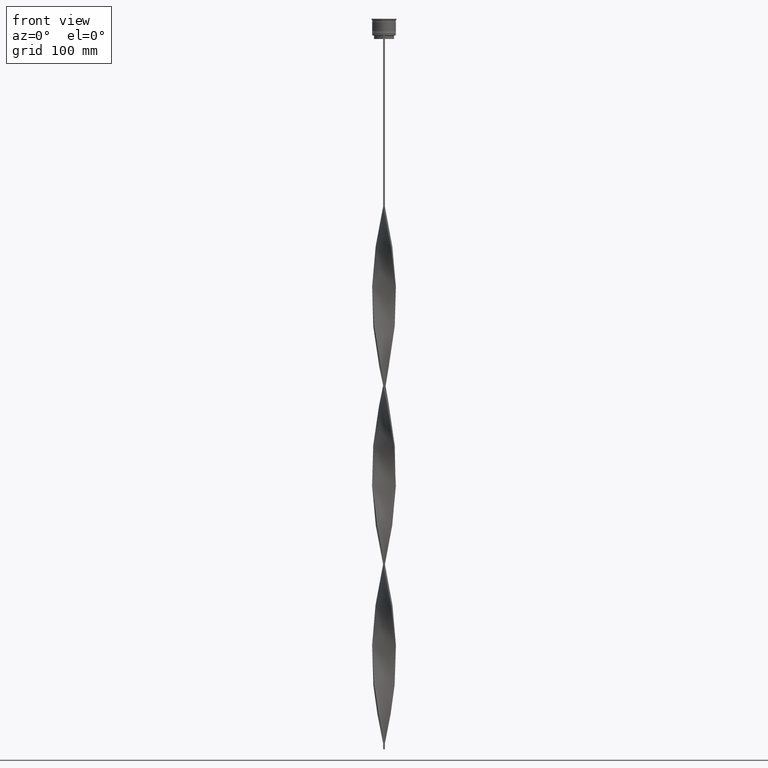
[diagram: clean part render]
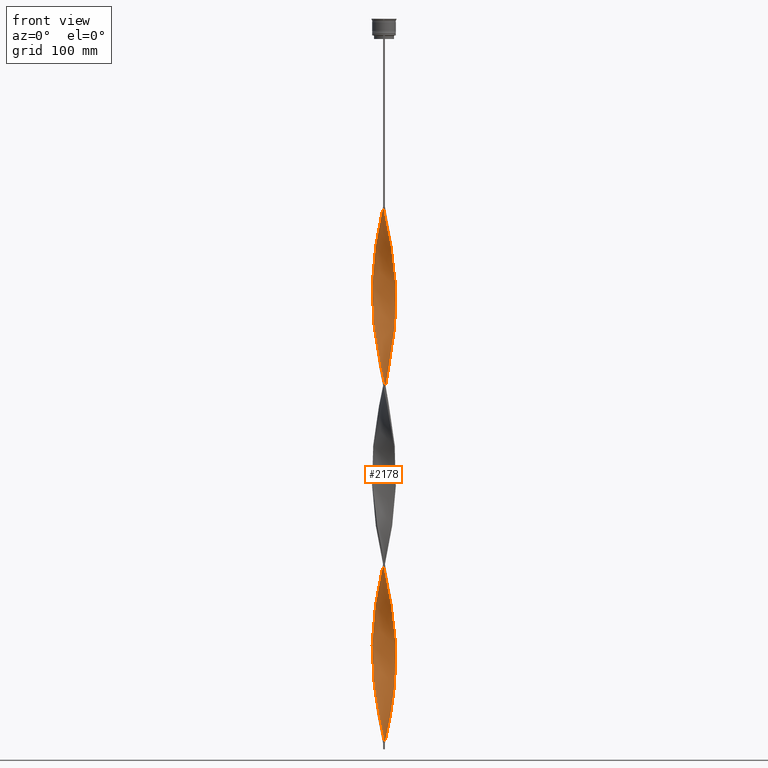
[diagram: same view with one face highlighted and labeled with its STEP entity id]
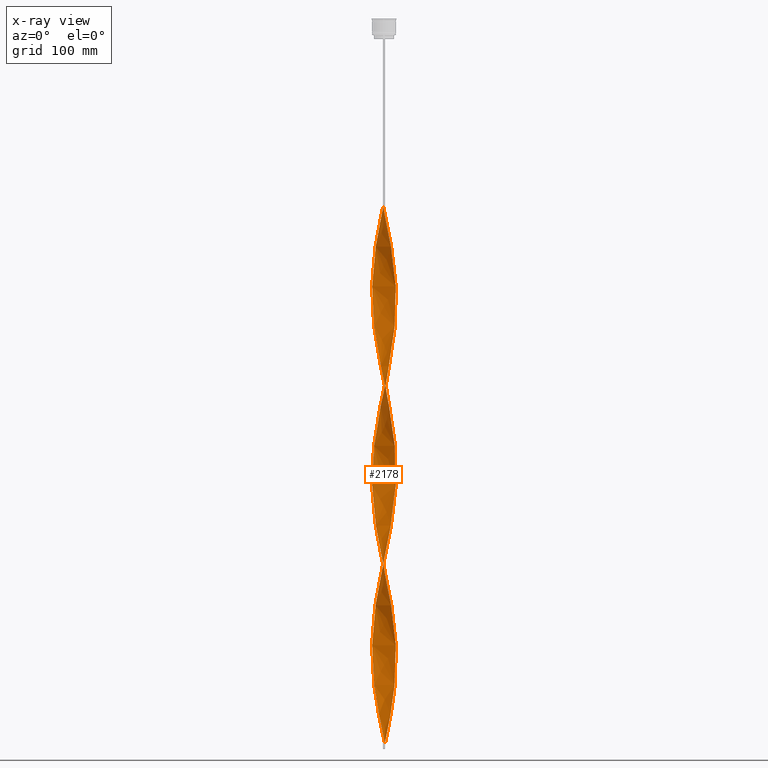
[diagram: x-ray of the same camera — body ghosted, the highlighted face saturated]
A machine part, front view. The second image highlights one B-rep face of the part: STEP entity #2178.
The next image is the same camera in x-ray: the body ghosted, the highlighted face saturated — about 0% of this face is hidden behind the body in this view.
In plain terms, the highlighted face is a freeform B-spline surface patch.
Its self-contained STEP definition (entity closure, byte-faithful):
#4 = CARTESIAN_POINT ( 'NONE',  ( -8.951782750839049285, -4.519743973034358930, -251.9583333333332860 ) ) ;
#9 = CARTESIAN_POINT ( 'NONE',  ( 5.106474812894079562, 8.655543079808078133, -587.0763888888888005 ) ) ;
#23 = CARTESIAN_POINT ( 'NONE',  ( 3.933013133174656506, 9.248022421870029319, -292.6736111111110290 ) ) ;
#35 = CARTESIAN_POINT ( 'NONE',  ( 9.682265536257562033, 2.692256508309355922, -392.8958333333332575 ) ) ;
#39 = CARTESIAN_POINT ( 'NONE',  ( 9.525807899386691702, 3.133924674267432042, -552.6249999999998863 ) ) ;
#45 = CARTESIAN_POINT ( 'NONE',  ( -10.00000000000000533, 0.7500000000000016653, -383.4999999999999432 ) ) ;
#57 = CARTESIAN_POINT ( 'NONE',  ( 9.035254037844383745, -4.350480947161674550, -358.4444444444444571 ) ) ;
#60 = CARTESIAN_POINT ( 'NONE',  ( 6.192563292782590878, 7.914964995880699128, -580.8124999999998863 ) ) ;
#67 = CARTESIAN_POINT ( 'NONE',  ( -9.465143979063794788, 3.312634820742017538, -370.9722222222222285 ) ) ;
#76 = CARTESIAN_POINT ( 'NONE',  ( 0.7499999999999985567, -9.999999999999998224, -308.3333333333333712 ) ) ;
#77 = CARTESIAN_POINT ( 'NONE',  ( -8.655543079808076357, -5.106474812894071569, -555.7569444444444571 ) ) ;
#82 = CARTESIAN_POINT ( 'NONE',  ( -9.853372546717571012, 1.863746081308408353, -220.6388888888888857 ) ) ;
#94 = CARTESIAN_POINT ( 'NONE',  ( -9.682265536257563809, 2.692256508309370133, -374.1041666666665719 ) ) ;
#105 = CARTESIAN_POINT ( 'NONE',  ( -5.492599284868781240, -8.390104474668889978, -277.0138888888889142 ) ) ;
#112 = CARTESIAN_POINT ( 'NONE',  ( 9.682265536257565586, -2.692256508309367469, -223.7708333333332860 ) ) ;
#115 = CARTESIAN_POINT ( 'NONE',  ( 3.133924674267435151, -9.525807899386689925, -477.4583333333333144 ) ) ;
#123 = CARTESIAN_POINT ( 'NONE',  ( 9.816553969573064364, 2.048845568230869940, -389.7638888888889142 ) ) ;
#124 = CARTESIAN_POINT ( 'NONE',  ( -8.750108451655689734, 4.942682784217357295, -505.6458333333333712 ) ) ;
#135 = CARTESIAN_POINT ( 'NONE',  ( -7.601397897755391320, -6.540737725975566796, -421.0833333333333144 ) ) ;
#144 = CARTESIAN_POINT ( 'NONE',  ( -3.758279110105989584, -9.320399624033075980, -286.4097222222221717 ) ) ;
#145 = CARTESIAN_POINT ( 'NONE',  ( -8.390104474668891754, 5.492599284868779463, -502.5138888888889142 ) ) ;
#151 = CARTESIAN_POINT ( 'NONE',  ( 5.649519052838335220, 8.285254037844389075, -283.2777777777777146 ) ) ;
#154 = CARTESIAN_POINT ( 'NONE',  ( -9.525807899386684596, 3.133924674267432930, -214.3749999999999716 ) ) ;
#167 = CARTESIAN_POINT ( 'NONE',  ( 7.601397897755380662, -6.540737725975567685, -345.9166666666666288 ) ) ;
#168 = CARTESIAN_POINT ( 'NONE',  ( -7.476962331155812436, -6.682629295305628325, -565.1527777777778283 ) ) ;
#180 = CARTESIAN_POINT ( 'NONE',  ( -2.692256508309364360, 9.682265536257558480, -167.3958333333333144 ) ) ;
#189 = CARTESIAN_POINT ( 'NONE',  ( -7.914964995880699128, -6.192563292782581996, -562.0208333333331439 ) ) ;
#196 = CARTESIAN_POINT ( 'NONE',  ( 9.248022421870027543, -3.933013133174655174, -217.5069444444443718 ) ) ;
#198 = CARTESIAN_POINT ( 'NONE',  ( -9.816553969573064364, -2.048845568230871272, -239.4305555555555429 ) ) ;
#208 = CARTESIAN_POINT ( 'NONE',  ( -3.758279110105989584, -9.320399624033075980, -587.0763888888888005 ) ) ;
#216 = CARTESIAN_POINT ( 'NONE',  ( -4.942682784217356406, 8.750108451655700392, -336.5208333333332575 ) ) ;
#230 = CARTESIAN_POINT ( 'NONE',  ( -8.951782750839049285, -4.519743973034358930, -552.6249999999998863 ) ) ;
#241 = CARTESIAN_POINT ( 'NONE',  ( -4.350480947161670997, 9.035254037844394404, -333.3888888888888573 ) ) ;
#253 = CARTESIAN_POINT ( 'NONE',  ( -5.649519052838327227, 8.285254037844385522, -483.7222222222222285 ) ) ;
#259 = CARTESIAN_POINT ( 'NONE',  ( -1.217921924187931326, 9.975528918694863023, -317.7291666666665719 ) ) ;
#267 = CARTESIAN_POINT ( 'NONE',  ( 9.731216174740296765, 2.509570238428878497, -248.8263888888888289 ) ) ;
#277 = CARTESIAN_POINT ( 'NONE',  ( 7.601397897755390431, 6.540737725975568573, -571.4166666666666288 ) ) ;
#281 = CARTESIAN_POINT ( 'NONE',  ( 4.350480947161672773, -9.035254037844392627, -483.7222222222222285 ) ) ;
#305 = CARTESIAN_POINT ( 'NONE',  ( 9.731216174740296765, 2.509570238428878497, -549.4930555555553156 ) ) ;
#309 = CARTESIAN_POINT ( 'NONE',  ( -0.7499999999999998890, -10.00000000000000533, -458.6666666666666856 ) ) ;
#319 = CARTESIAN_POINT ( 'NONE',  ( 7.601397897755390431, 6.540737725975568573, -270.7500000000000000 ) ) ;
#328 = CARTESIAN_POINT ( 'NONE',  ( -2.509570238428880273, -9.731216174740287883, -292.6736111111110290 ) ) ;
#332 = CARTESIAN_POINT ( 'NONE',  ( -5.106474812894072457, 8.655543079808074580, -179.9236111111110574 ) ) ;
#341 = CARTESIAN_POINT ( 'NONE',  ( 4.942682784217358183, -8.750108451655696840, -186.1875000000000000 ) ) ;
#349 = CARTESIAN_POINT ( 'NONE',  ( 9.816553969573064364, 2.048845568230869940, -389.7638888888889142 ) ) ;
#360 = CARTESIAN_POINT ( 'NONE',  ( 8.285254037844389075, -5.649519052838332556, -208.1111111111110858 ) ) ;
#369 = CARTESIAN_POINT ( 'NONE',  ( 4.519743973034357154, -8.951782750839051062, -327.1250000000000000 ) ) ;
#374 = CARTESIAN_POINT ( 'NONE',  ( -8.390104474668891754, 5.492599284868779463, -201.8472222222222001 ) ) ;
#387 = CARTESIAN_POINT ( 'NONE',  ( -8.030100497682097327, -6.042515785520205185, -417.9513888888888005 ) ) ;
#401 = CARTESIAN_POINT ( 'NONE',  ( 3.133924674267438704, 9.525807899386681044, -439.8749999999999432 ) ) ;
#405 = CARTESIAN_POINT ( 'NONE',  ( 8.285254037844389075, -5.649519052838332556, -508.7777777777777715 ) ) ;
#415 = CARTESIAN_POINT ( 'NONE',  ( 0.7500000000000009992, 10.00000000000000533, -308.3333333333333712 ) ) ;
#420 = CARTESIAN_POINT ( 'NONE',  ( 0.7499999999999985567, -9.999999999999998224, -609.0000000000000000 ) ) ;
#424 = CARTESIAN_POINT ( 'NONE',  ( 3.133924674267438704, 9.525807899386681044, -439.8749999999999432 ) ) ;
#425 = CARTESIAN_POINT ( 'NONE',  ( -6.042515785520206073, -8.030100497682088445, -574.5486111111111995 ) ) ;
#429 = CARTESIAN_POINT ( 'NONE',  ( -9.950842402888570248, -1.405434628152380183, -236.2986111111110574 ) ) ;
#438 = CARTESIAN_POINT ( 'NONE',  ( -0.7499999999999997780, -10.00000000000000533, -458.6666666666666856 ) ) ;
#445 = CARTESIAN_POINT ( 'NONE',  ( -6.540737725975564132, -7.601397897755384214, -270.7500000000000000 ) ) ;
#446 = CARTESIAN_POINT ( 'NONE',  ( -6.192563292782584661, 7.914964995880697352, -486.8541666666665719 ) ) ;
#450 = EDGE_CURVE ( 'NONE', #1788, #1752, #3880, .T. ) ;
#461 = CARTESIAN_POINT ( 'NONE',  ( 4.350480947161672773, -9.035254037844392627, -483.7222222222222285 ) ) ;
#470 = CARTESIAN_POINT ( 'NONE',  ( 8.030100497682088445, -6.042515785520206073, -349.0486111111110858 ) ) ;
#472 = CARTESIAN_POINT ( 'NONE',  ( -5.106474812894072457, 8.655543079808076357, -480.5902777777776578 ) ) ;
#479 = CARTESIAN_POINT ( 'NONE',  ( -0.7499999999999998890, -10.00000000000000533, -157.9999999999999716 ) ) ;
#481 = CARTESIAN_POINT ( 'NONE',  ( -10.01234325790314905, -0.5616782761701557547, -389.7638888888889142 ) ) ;
#488 = CARTESIAN_POINT ( 'NONE',  ( 8.951782750839051062, 4.519743973034356266, -402.2916666666666856 ) ) ;
#496 = CARTESIAN_POINT ( 'NONE',  ( 8.030100497682097327, 6.042515785520204297, -267.6180555555554861 ) ) ;
#500 = CARTESIAN_POINT ( 'NONE',  ( -4.519743973034361595, 8.951782750839049285, -176.7916666666666572 ) ) ;
#508 = CARTESIAN_POINT ( 'NONE',  ( 6.540737725975565020, 7.601397897755383326, -421.0833333333333144 ) ) ;
#509 = CARTESIAN_POINT ( 'NONE',  ( -9.248022421870022214, -3.933013133174650289, -549.4930555555553156 ) ) ;
#514 = CARTESIAN_POINT ( 'NONE',  ( 2.692256508309370133, 9.682265536257565586, -298.9374999999999432 ) ) ;
#517 = CARTESIAN_POINT ( 'NONE',  ( 8.030100497682097327, 6.042515785520205185, -568.2847222222220580 ) ) ;
#533 = CARTESIAN_POINT ( 'NONE',  ( -9.975528918694857694, 1.217921924187934213, -524.4375000000000000 ) ) ;
#541 = CARTESIAN_POINT ( 'NONE',  ( 7.914964995880702681, -6.192563292782589990, -204.9791666666666288 ) ) ;
#544 = CARTESIAN_POINT ( 'NONE',  ( -0.7499999999999997780, 9.999999999999998224, -157.9999999999999716 ) ) ;
#553 = CARTESIAN_POINT ( 'NONE',  ( -6.042515785520205185, -8.030100497682088445, -574.5486111111110858 ) ) ;
#561 = CARTESIAN_POINT ( 'NONE',  ( -7.914964995880697352, 6.192563292782595319, -355.3124999999999432 ) ) ;
#573 = CARTESIAN_POINT ( 'NONE',  ( 1.863746081308414348, 9.853372546717571012, -446.1388888888888573 ) ) ;
#580 = CARTESIAN_POINT ( 'NONE',  ( -8.390104474668900636, -5.492599284868775911, -414.8194444444444002 ) ) ;
#596 = CARTESIAN_POINT ( 'NONE',  ( -0.7499999999999997780, 9.999999999999998224, -458.6666666666666856 ) ) ;
#605 = CARTESIAN_POINT ( 'NONE',  ( 1.405434628152387289, 9.950842402888575577, -305.2013888888888573 ) ) ;
#612 = CARTESIAN_POINT ( 'NONE',  ( 0.5616782761701589743, -10.01234325790314905, -164.2638888888888857 ) ) ;
#616 = CARTESIAN_POINT ( 'NONE',  ( -9.682265536257560257, -2.692256508309361696, -543.2291666666665151 ) ) ;
#620 = CARTESIAN_POINT ( 'NONE',  ( -9.035254037844385522, 4.350480947161671885, -208.1111111111110858 ) ) ;
#626 = CARTESIAN_POINT ( 'NONE',  ( -8.030100497682097327, -6.042515785520203409, -417.9513888888888573 ) ) ;
#638 = CARTESIAN_POINT ( 'NONE',  ( 9.816553969573071470, -2.048845568230875269, -226.9027777777777715 ) ) ;
#648 = CARTESIAN_POINT ( 'NONE',  ( 4.519743973034366036, 8.951782750839054614, -590.2083333333333712 ) ) ;
#651 = CARTESIAN_POINT ( 'NONE',  ( -9.853372546717578118, -1.863746081308403024, -396.0277777777777715 ) ) ;
#659 = CARTESIAN_POINT ( 'NONE',  ( 2.509570238428880273, -9.731216174740296765, -173.6597222222221717 ) ) ;
#670 = CARTESIAN_POINT ( 'NONE',  ( 3.933013133174646736, -9.248022421870027543, -323.9930555555555429 ) ) ;
#692 = CARTESIAN_POINT ( 'NONE',  ( -0.5616782761701621940, -10.01234325790314195, -302.0694444444444002 ) ) ;
#695 = CARTESIAN_POINT ( 'NONE',  ( 7.914964995880702681, -6.192563292782589990, -505.6458333333333712 ) ) ;
#703 = CARTESIAN_POINT ( 'NONE',  ( 4.519743973034366036, 8.951782750839054614, -289.5416666666666288 ) ) ;
#713 = CARTESIAN_POINT ( 'NONE',  ( 7.601397897755380662, -6.540737725975567685, -345.9166666666666288 ) ) ;
#717 = CARTESIAN_POINT ( 'NONE',  ( -7.601397897755385102, 6.540737725975564132, -195.5833333333333144 ) ) ;
#726 = CARTESIAN_POINT ( 'NONE',  ( 7.038959666430927520, -7.172695297828685312, -499.3819444444444002 ) ) ;
#736 = CARTESIAN_POINT ( 'NONE',  ( 9.853372546717571012, -1.863746081308413904, -370.9722222222222285 ) ) ;
#743 = CARTESIAN_POINT ( 'NONE',  ( -2.692256508309364360, 9.682265536257558480, -167.3958333333332860 ) ) ;
#755 = CARTESIAN_POINT ( 'NONE',  ( -7.914964995880697352, 6.192563292782595319, -355.3124999999998863 ) ) ;
#766 = CARTESIAN_POINT ( 'NONE',  ( 7.476962331155815988, 6.682629295305624773, -414.8194444444444002 ) ) ;
#767 = CARTESIAN_POINT ( 'NONE',  ( 2.692256508309361251, -9.682265536257560257, -317.7291666666665151 ) ) ;
#772 = CARTESIAN_POINT ( 'NONE',  ( -3.312634820742007769, 9.465143979063791235, -170.5277777777777430 ) ) ;
#781 = CARTESIAN_POINT ( 'NONE',  ( -7.476962331155814212, 6.682629295305638095, -352.1805555555554861 ) ) ;
#790 = CARTESIAN_POINT ( 'NONE',  ( 10.01234325790314195, -0.5616782761701673010, -377.2361111111110858 ) ) ;
#791 = CARTESIAN_POINT ( 'NONE',  ( -7.172695297828679983, 7.038959666430923967, -493.1180555555555998 ) ) ;
#795 = CARTESIAN_POINT ( 'NONE',  ( -9.816553969573064364, -2.048845568230871272, -239.4305555555555429 ) ) ;
#801 = CARTESIAN_POINT ( 'NONE',  ( 8.655543079808079909, -5.106474812894076898, -211.2430555555555145 ) ) ;
#804 = CARTESIAN_POINT ( 'NONE',  ( 0.5616782761701589743, -10.01234325790314905, -464.9305555555555429 ) ) ;
#812 = CARTESIAN_POINT ( 'NONE',  ( 7.172695297828676431, -7.038959666430926632, -342.7847222222222285 ) ) ;
#814 = CARTESIAN_POINT ( 'NONE',  ( -7.914964995880700016, -6.192563292782582884, -562.0208333333331439 ) ) ;
#823 = CARTESIAN_POINT ( 'NONE',  ( 6.682629295305638095, 7.476962331155813324, -277.0138888888889142 ) ) ;
#828 = CARTESIAN_POINT ( 'NONE',  ( -3.133924674267428934, 9.525807899386691702, -327.1250000000000000 ) ) ;
#840 = CARTESIAN_POINT ( 'NONE',  ( -9.465143979063791235, -3.312634820742006880, -245.6944444444444287 ) ) ;
#848 = CARTESIAN_POINT ( 'NONE',  ( 0.5616782761701588633, -10.01234325790314905, -164.2638888888888857 ) ) ;
#851 = CARTESIAN_POINT ( 'NONE',  ( 10.01234325790314905, 0.5616782761701568649, -540.0972222222221717 ) ) ;
#858 = CARTESIAN_POINT ( 'NONE',  ( -7.038959666430926632, -7.172695297828676431, -267.6180555555554861 ) ) ;
#859 = CARTESIAN_POINT ( 'NONE',  ( -0.09456537184761161507, 10.04915759711142798, -455.5347222222221149 ) ) ;
#865 = CARTESIAN_POINT ( 'NONE',  ( 8.951782750839054614, -4.519743973034365148, -214.3749999999999716 ) ) ;
#868 = CARTESIAN_POINT ( 'NONE',  ( 1.405434628152387067, 9.950842402888577354, -605.8680555555556566 ) ) ;
#877 = CARTESIAN_POINT ( 'NONE',  ( -2.692256508309364360, 9.682265536257558480, -468.0624999999999432 ) ) ;
#878 = CARTESIAN_POINT ( 'NONE',  ( -9.525807899386684596, 3.133924674267432930, -515.0416666666666288 ) ) ;
#884 = CARTESIAN_POINT ( 'NONE',  ( 5.492599284868782128, -8.390104474668898860, -189.3194444444444287 ) ) ;
#888 = CARTESIAN_POINT ( 'NONE',  ( -8.390104474668891754, 5.492599284868779463, -201.8472222222222001 ) ) ;
#901 = CARTESIAN_POINT ( 'NONE',  ( -7.038959666430926632, -7.172695297828676431, -568.2847222222221717 ) ) ;
#911 = CARTESIAN_POINT ( 'NONE',  ( 0.5616782761701588633, -10.01234325790314905, -464.9305555555555429 ) ) ;
#914 = CARTESIAN_POINT ( 'NONE',  ( 9.975528918694864799, 1.217921924187931992, -543.2291666666665151 ) ) ;
#927 = CARTESIAN_POINT ( 'NONE',  ( -7.172695297828679983, 7.038959666430923079, -493.1180555555555429 ) ) ;
#934 = CARTESIAN_POINT ( 'NONE',  ( -3.312634820742017983, -9.465143979063794788, -446.1388888888888573 ) ) ;
#951 = CARTESIAN_POINT ( 'NONE',  ( -9.975528918694864799, -1.217921924187925997, -392.8958333333332575 ) ) ;
#966 = CARTESIAN_POINT ( 'NONE',  ( -4.519743973034361595, 8.951782750839049285, -477.4583333333333144 ) ) ;
#979 = CARTESIAN_POINT ( 'NONE',  ( 2.509570238428879829, -9.731216174740296765, -474.3263888888889142 ) ) ;
#995 = CARTESIAN_POINT ( 'NONE',  ( 8.390104474668897083, 5.492599284868780352, -565.1527777777778283 ) ) ;
#998 = ORIENTED_EDGE ( 'NONE', *, *, #1343, .F. ) ;
#1001 = CARTESIAN_POINT ( 'NONE',  ( -3.758279110105986920, 9.320399624033083086, -330.2569444444443434 ) ) ;
#1010 = CARTESIAN_POINT ( 'NONE',  ( 9.465143979063796564, -3.312634820742011765, -220.6388888888888857 ) ) ;
#1017 = CARTESIAN_POINT ( 'NONE',  ( -1.217921924187937321, -9.975528918694859470, -298.9374999999999432 ) ) ;
#1020 = CARTESIAN_POINT ( 'NONE',  ( 8.390104474668897083, 5.492599284868780352, -565.1527777777778283 ) ) ;
#1031 = CARTESIAN_POINT ( 'NONE',  ( 2.692256508309369689, 9.682265536257565586, -298.9374999999999432 ) ) ;
#1043 = CARTESIAN_POINT ( 'NONE',  ( 8.750108451655687958, -4.942682784217363512, -355.3124999999998863 ) ) ;
#1047 = CARTESIAN_POINT ( 'NONE',  ( 7.172695297828685312, 7.038959666430926632, -574.5486111111110858 ) ) ;
#1057 = CARTESIAN_POINT ( 'NONE',  ( 8.390104474668897083, 5.492599284868780352, -264.4861111111110858 ) ) ;
#1067 = CARTESIAN_POINT ( 'NONE',  ( 9.975528918694857694, -1.217921924187937988, -374.1041666666665719 ) ) ;
#1071 = CARTESIAN_POINT ( 'NONE',  ( -6.682629295305630102, 7.476962331155812436, -189.3194444444444287 ) ) ;
#1079 = CARTESIAN_POINT ( 'NONE',  ( 2.509570238428880273, -9.731216174740296765, -474.3263888888889142 ) ) ;
#1089 = CARTESIAN_POINT ( 'NONE',  ( 7.476962331155815988, 6.682629295305624773, -414.8194444444444002 ) ) ;
#1094 = CARTESIAN_POINT ( 'NONE',  ( 10.04915759711143508, -0.09456537184761866499, -536.9652777777778283 ) ) ;
#1102 = CARTESIAN_POINT ( 'NONE',  ( -8.951782750839052838, 4.519743973034369589, -364.7083333333333144 ) ) ;
#1109 = CARTESIAN_POINT ( 'NONE',  ( 4.519743973034357154, -8.951782750839051062, -327.1250000000000000 ) ) ;
#1110 = CARTESIAN_POINT ( 'NONE',  ( 0.7499999999999985567, -9.999999999999998224, -308.3333333333333712 ) ) ;
#1128 = CARTESIAN_POINT ( 'NONE',  ( -9.525807899386691702, -3.133924674267428934, -402.2916666666666856 ) ) ;
#1137 = B_SPLINE_CURVE_WITH_KNOTS ( 'NONE', 3,
 ( #3061, #1250, #3367, #2716 ),
 .UNSPECIFIED., .F., .F.,
 ( 4, 4 ),
 ( 0.000000000000000000, 1.000000000000000000 ),
 .UNSPECIFIED. ) ;
#1138 = CARTESIAN_POINT ( 'NONE',  ( -4.350480947161673662, -9.035254037844383745, -283.2777777777777146 ) ) ;
#1142 = CARTESIAN_POINT ( 'NONE',  ( -10.01234325790314195, 0.5616782761701593074, -226.9027777777777715 ) ) ;
#1149 = CARTESIAN_POINT ( 'NONE',  ( 10.01234325790314905, 0.5616782761701567539, -239.4305555555555429 ) ) ;
#1151 = CARTESIAN_POINT ( 'NONE',  ( -10.04915759711143508, 0.09456537184762441040, -386.6319444444444571 ) ) ;
#1159 = CARTESIAN_POINT ( 'NONE',  ( -2.509570238428880273, -9.731216174740287883, -292.6736111111110858 ) ) ;
#1160 = CARTESIAN_POINT ( 'NONE',  ( -9.999999999999998224, -0.7499999999999991118, -533.8333333333333712 ) ) ;
#1171 = CARTESIAN_POINT ( 'NONE',  ( -3.933013133174656950, -9.248022421870029319, -443.0069444444444002 ) ) ;
#1180 = CARTESIAN_POINT ( 'NONE',  ( 7.914964995880699128, 6.192563292782581108, -411.6875000000000000 ) ) ;
#1181 = CARTESIAN_POINT ( 'NONE',  ( -5.649519052838327227, 8.285254037844385522, -483.7222222222222285 ) ) ;
#1194 = VECTOR ( 'NONE', #4325, 1000.000000000000000 ) ;
#1196 = CARTESIAN_POINT ( 'NONE',  ( 9.248022421870029319, -3.933013133174655618, -518.1736111111110858 ) ) ;
#1209 = CARTESIAN_POINT ( 'NONE',  ( -7.914964995880699128, -6.192563292782581996, -261.3541666666666856 ) ) ;
#1210 = CARTESIAN_POINT ( 'NONE',  ( -8.030100497682088445, 6.042515785520206073, -499.3819444444444002 ) ) ;
#1221 = CARTESIAN_POINT ( 'NONE',  ( -5.106474812894072457, 8.655543079808076357, -179.9236111111110574 ) ) ;
#1231 = CARTESIAN_POINT ( 'NONE',  ( -4.942682784217359071, -8.750108451655691510, -580.8124999999998863 ) ) ;
#1239 = CARTESIAN_POINT ( 'NONE',  ( 3.133924674267435151, -9.525807899386689925, -176.7916666666666572 ) ) ;
#1242 = CARTESIAN_POINT ( 'NONE',  ( 9.816553969573071470, -2.048845568230875269, -527.5694444444444571 ) ) ;
#1249 = CARTESIAN_POINT ( 'NONE',  ( -9.525807899386684596, 3.133924674267432930, -515.0416666666666288 ) ) ;
#1250 = CARTESIAN_POINT ( 'NONE',  ( 0.7500000000000002220, 3.333333333333337478, -609.0000000000000000 ) ) ;
#1257 = CARTESIAN_POINT ( 'NONE',  ( 4.942682784217358183, -8.750108451655696840, -486.8541666666665719 ) ) ;
#1262 = CARTESIAN_POINT ( 'NONE',  ( -2.048845568230873049, 9.816553969573064364, -164.2638888888888857 ) ) ;
#1277 = CARTESIAN_POINT ( 'NONE',  ( -0.09456537184761161507, 10.04915759711142798, -455.5347222222221149 ) ) ;
#1284 = CARTESIAN_POINT ( 'NONE',  ( -9.525807899386691702, -3.133924674267428490, -402.2916666666666856 ) ) ;
#1305 = CARTESIAN_POINT ( 'NONE',  ( -9.035254037844394404, -4.350480947161666556, -408.5555555555555429 ) ) ;
#1318 = CARTESIAN_POINT ( 'NONE',  ( -9.465143979063791235, -3.312634820742006880, -546.3611111111110858 ) ) ;
#1326 = CARTESIAN_POINT ( 'NONE',  ( -7.172695297828689753, -7.038959666430923079, -424.2152777777777146 ) ) ;
#1343 = EDGE_CURVE ( 'NONE', #1788, #1670, #1600, .T. ) ;
#1349 = CARTESIAN_POINT ( 'NONE',  ( 9.035254037844392627, 4.350480947161671885, -558.8888888888889142 ) ) ;
#1355 = CARTESIAN_POINT ( 'NONE',  ( -9.816553969573067917, 2.048845568230882819, -377.2361111111110858 ) ) ;
#1362 = CARTESIAN_POINT ( 'NONE',  ( 8.951782750839054614, -4.519743973034365148, -214.3749999999999716 ) ) ;
#1369 = CARTESIAN_POINT ( 'NONE',  ( 2.509570238428881161, 9.731216174740287883, -443.0069444444444002 ) ) ;
#1372 = ORIENTED_EDGE ( 'NONE', *, *, #1459, .T. ) ;
#1384 = CARTESIAN_POINT ( 'NONE',  ( 6.192563292782590878, 7.914964995880701792, -280.1458333333333144 ) ) ;
#1391 = CARTESIAN_POINT ( 'NONE',  ( 9.999999999999998224, 0.7499999999999980016, -383.4999999999999432 ) ) ;
#1394 = CARTESIAN_POINT ( 'NONE',  ( -6.192563292782584661, 7.914964995880697352, -186.1874999999999716 ) ) ;
#1403 = CARTESIAN_POINT ( 'NONE',  ( 6.540737725975569461, -7.601397897755390431, -195.5833333333333144 ) ) ;
#1416 = CARTESIAN_POINT ( 'NONE',  ( -8.285254037844385522, -5.649519052838325450, -258.2222222222221717 ) ) ;
#1422 = CARTESIAN_POINT ( 'NONE',  ( 2.692256508309370133, 9.682265536257565586, -599.6041666666666288 ) ) ;
#1431 = CARTESIAN_POINT ( 'NONE',  ( 9.320399624033084862, 3.758279110105986920, -255.0902777777776862 ) ) ;
#1440 = CARTESIAN_POINT ( 'NONE',  ( 7.914964995880700016, 6.192563292782581996, -411.6875000000000000 ) ) ;
#1444 = CARTESIAN_POINT ( 'NONE',  ( 10.01234325790314905, 0.5616782761701567539, -540.0972222222221717 ) ) ;
#1453 = CARTESIAN_POINT ( 'NONE',  ( -4.942682784217356406, 8.750108451655700392, -336.5208333333332575 ) ) ;
#1456 = ORIENTED_EDGE ( 'NONE', *, *, #450, .T. ) ;
#1459 = EDGE_CURVE ( 'NONE', #1752, #2887, #4129, .T. ) ;
#1462 = CARTESIAN_POINT ( 'NONE',  ( -3.133924674267433819, -9.525807899386684596, -289.5416666666666288 ) ) ;
#1465 = CARTESIAN_POINT ( 'NONE',  ( 5.649519052838335220, 8.285254037844389075, -583.9444444444443434 ) ) ;
#1473 = CARTESIAN_POINT ( 'NONE',  ( -4.350480947161671885, 9.035254037844394404, -333.3888888888888573 ) ) ;
#1482 = CARTESIAN_POINT ( 'NONE',  ( 8.390104474668889978, -5.492599284868781240, -352.1805555555554861 ) ) ;
#1484 = CARTESIAN_POINT ( 'NONE',  ( -9.035254037844385522, 4.350480947161671885, -508.7777777777777715 ) ) ;
#1491 = CARTESIAN_POINT ( 'NONE',  ( -9.035254037844385522, 4.350480947161671885, -208.1111111111110858 ) ) ;
#1503 = CARTESIAN_POINT ( 'NONE',  ( -1.217921924187931548, 9.975528918694864799, -317.7291666666665151 ) ) ;
#1510 = CARTESIAN_POINT ( 'NONE',  ( 9.975528918694857694, -1.217921924187937766, -374.1041666666666288 ) ) ;
#1520 = CARTESIAN_POINT ( 'NONE',  ( 7.601397897755390431, 6.540737725975568573, -270.7500000000000000 ) ) ;
#1523 = CARTESIAN_POINT ( 'NONE',  ( 6.042515785520209626, -8.030100497682095551, -493.1180555555555998 ) ) ;
#1532 = CARTESIAN_POINT ( 'NONE',  ( 9.682265536257562033, 2.692256508309355922, -392.8958333333332575 ) ) ;
#1533 = CARTESIAN_POINT ( 'NONE',  ( -10.04915759711142798, -0.09456537184761565351, -530.7013888888888005 ) ) ;
#1540 = CARTESIAN_POINT ( 'NONE',  ( 4.942682784217358183, -8.750108451655696840, -186.1874999999999716 ) ) ;
#1542 = CARTESIAN_POINT ( 'NONE',  ( -3.312634820742017983, -9.465143979063794788, -446.1388888888888573 ) ) ;
#1548 = CARTESIAN_POINT ( 'NONE',  ( -0.7499999999999998890, -10.00000000000000533, -157.9999999999999716 ) ) ;
#1554 = CARTESIAN_POINT ( 'NONE',  ( -1.863746081308408575, -9.853372546717571012, -295.8055555555555429 ) ) ;
#1555 = CARTESIAN_POINT ( 'NONE',  ( -3.133924674267433819, -9.525807899386684596, -590.2083333333333712 ) ) ;
#1563 = CARTESIAN_POINT ( 'NONE',  ( 4.519743973034366036, 8.951782750839054614, -289.5416666666666288 ) ) ;
#1567 = CARTESIAN_POINT ( 'NONE',  ( -9.975528918694859470, 1.217921924187934213, -223.7708333333332575 ) ) ;
#1581 = CARTESIAN_POINT ( 'NONE',  ( 0.09456537184761271142, -10.04915759711142798, -605.8680555555555429 ) ) ;
#1583 = CARTESIAN_POINT ( 'NONE',  ( -0.7499999999999997780, 9.999999999999998224, -458.6666666666666856 ) ) ;
#1591 = CARTESIAN_POINT ( 'NONE',  ( 2.509570238428879829, -9.731216174740296765, -173.6597222222221717 ) ) ;
#1594 = CARTESIAN_POINT ( 'NONE',  ( -5.649519052838327227, 8.285254037844385522, -183.0555555555555145 ) ) ;
#1600 =( BOUNDED_CURVE ( )  B_SPLINE_CURVE ( 2, ( #479, #4057, #848, #3718, #1902, #1591, #1239, #3967, #2589, #1540, #884, #3372, #2639, #4316, #4356, #541, #2954, #801, #865, #196, #4038, #112, #1923, #1614, #2294, #2616, #1149, #4017, #3630, #3987, #2274, #3674, #2569, #2226, #3287, #496, #1520, #2936, #823, #3327, #151, #3693, #1563, #2981, #4383, #514, #1945, #605, #3757, #2771, #1633, #259, #2339, #2010, #4171, #1001, #241, #216, #2077, #2427, #1993, #4124, #4107, #561, #3044, #4454, #2038, #3416, #3439, #2360, #1355, #3393, #4495, #3821, #2057, #951, #651, #4474, #1284, #3483, #1305, #2705, #580, #626, #1683, #1326, #4086, #2382, #1662, #3066, #2723, #3779, #934, #3087, #3460, #4422, #309, #2744, #911, #3802, #4149, #979, #2406, #3022, #281, #1257, #1704, #3111, #4524, #2680, #3738, #695, #405, #3940, #3209, #1731, #1776, #3578, #4214, #2791, #2862, #1094, #1444, #2107, #3885, #3602, #39, #3529, #2198, #2126, #1020, #3159, #2476, #1047, #1829, #60, #1465, #9, #3230, #3841, #2883, #1422, #2837, #4263, #3182 ),
 .UNSPECIFIED., .F., .T. ) 
 B_SPLINE_CURVE_WITH_KNOTS ( ( 3, 2, 2, 2, 2, 2, 2, 2, 2, 2, 2, 2, 2, 2, 2, 2, 2, 2, 2, 2, 2, 2, 2, 2, 2, 2, 2, 2, 2, 2, 2, 2, 2, 2, 2, 2, 2, 2, 2, 2, 2, 2, 2, 2, 2, 2, 2, 2, 2, 2, 2, 2, 2, 2, 2, 2, 2, 2, 2, 2, 2, 2, 2, 2, 2, 2, 2, 2, 2, 2, 2, 2, 3 ),
 ( 0.000000000000000000, 0.01041666666666666609, 0.02083333333333333218, 0.03125000000000000000, 0.04166666666666666435, 0.05208333333333333565, 0.06250000000000000000, 0.07291666666666667129, 0.08333333333333332871, 0.09375000000000000000, 0.1041666666666666713, 0.1145833333333333287, 0.1250000000000000000, 0.1354166666666666574, 0.1458333333333333426, 0.1562500000000000000, 0.1666666666666666574, 0.1770833333333333426, 0.1875000000000000000, 0.1979166666666666574, 0.2083333333333333426, 0.2187500000000000000, 0.2291666666666666574, 0.2395833333333333426, 0.2500000000000000000, 0.2604166666666666852, 0.2708333333333333148, 0.2812500000000000000, 0.2916666666666666852, 0.3020833333333333148, 0.3125000000000000000, 0.3229166666666666852, 0.3333333333333333148, 0.3437500000000000000, 0.3541666666666666852, 0.3645833333333333148, 0.3750000000000000000, 0.3854166666666666852, 0.3958333333333333148, 0.4062500000000000000, 0.4166666666666666852, 0.4270833333333333148, 0.4375000000000000000, 0.4479166666666666852, 0.4583333333333333148, 0.4687500000000000000, 0.4791666666666666852, 0.4895833333333333148, 0.5000000000000000000, 0.5104166666666666297, 0.5208333333333333703, 0.5312500000000000000, 0.5416666666666666297, 0.5520833333333333703, 0.5625000000000000000, 0.5729166666666666297, 0.5833333333333333703, 0.5937500000000000000, 0.6041666666666666297, 0.6145833333333333703, 0.6250000000000000000, 0.6354166666666666297, 0.6458333333333333703, 0.6562500000000000000, 0.6666666666666666297, 0.6770833333333333703, 0.6875000000000000000, 0.6979166666666666297, 0.7083333333333333703, 0.7187500000000000000, 0.7291666666666666297, 0.7395833333333333703, 0.7500000000000000000 ),
 .UNSPECIFIED. ) 
 CURVE ( )  GEOMETRIC_REPRESENTATION_ITEM ( )  RATIONAL_B_SPLINE_CURVE ( ( 1.000000000000000000, 0.9978589232386034791, 1.000000000000000000, 0.9978589232386034791, 1.000000000000000000, 0.9978589232386034791, 1.000000000000000000, 0.9978589232386034791, 1.000000000000000000, 0.9978589232386034791, 1.000000000000000000, 0.9978589232386034791, 1.000000000000000000, 0.9978589232386034791, 1.000000000000000000, 0.9978589232386034791, 1.000000000000000000, 0.9978589232386034791, 1.000000000000000000, 0.9978589232386034791, 1.000000000000000000, 0.9978589232386034791, 1.000000000000000000, 0.9978589232386034791, 1.000000000000000000, 0.9978589232386034791, 1.000000000000000000, 0.9978589232386034791, 1.000000000000000000, 0.9978589232386034791, 1.000000000000000000, 0.9978589232386034791, 1.000000000000000000, 0.9978589232386034791, 1.000000000000000000, 0.9978589232386034791, 1.000000000000000000, 0.9978589232386034791, 1.000000000000000000, 0.9978589232386034791, 1.000000000000000000, 0.9978589232386034791, 1.000000000000000000, 0.9978589232386034791, 1.000000000000000000, 0.9978589232386034791, 1.000000000000000000, 0.9978589232386034791, 1.000000000000000000, 0.9978589232386034791, 1.000000000000000000, 0.9978589232386034791, 1.000000000000000000, 0.9978589232386034791, 1.000000000000000000, 0.9978589232386034791, 1.000000000000000000, 0.9978589232386034791, 1.000000000000000000, 0.9978589232386034791, 1.000000000000000000, 0.9978589232386034791, 1.000000000000000000, 0.9978589232386034791, 1.000000000000000000, 0.9978589232386034791, 1.000000000000000000, 0.9978589232386034791, 1.000000000000000000, 0.9978589232386034791, 1.000000000000000000, 0.9978589232386034791, 1.000000000000000000, 0.9978589232386034791, 1.000000000000000000, 0.9978589232386034791, 1.000000000000000000, 0.9978589232386034791, 1.000000000000000000, 0.9978589232386034791, 1.000000000000000000, 0.9978589232386034791, 1.000000000000000000, 0.9978589232386034791, 1.000000000000000000, 0.9978589232386034791, 1.000000000000000000, 0.9978589232386034791, 1.000000000000000000, 0.9978589232386034791, 1.000000000000000000, 0.9978589232386034791, 1.000000000000000000, 0.9978589232386034791, 1.000000000000000000, 0.9978589232386034791, 1.000000000000000000, 0.9978589232386034791, 1.000000000000000000, 0.9978589232386034791, 1.000000000000000000, 0.9978589232386034791, 1.000000000000000000, 0.9978589232386034791, 1.000000000000000000, 0.9978589232386034791, 1.000000000000000000, 0.9978589232386034791, 1.000000000000000000, 0.9978589232386034791, 1.000000000000000000, 0.9978589232386034791, 1.000000000000000000, 0.9978589232386034791, 1.000000000000000000, 0.9978589232386034791, 1.000000000000000000, 0.9978589232386034791, 1.000000000000000000, 0.9978589232386034791, 1.000000000000000000, 0.9978589232386034791, 1.000000000000000000, 0.9978589232386034791, 1.000000000000000000, 0.9978589232386034791, 1.000000000000000000, 0.9978589232386034791, 1.000000000000000000, 0.9978589232386034791, 1.000000000000000000, 0.9978589232386034791, 1.000000000000000000, 0.9978589232386034791, 1.000000000000000000, 0.9978589232386034791, 1.000000000000000000, 0.9978589232386034791, 1.000000000000000000, 0.9978589232386034791, 1.000000000000000000, 0.9978589232386034791, 1.000000000000000000, 0.9978589232386034791, 1.000000000000000000 ) ) 
 REPRESENTATION_ITEM ( '' )  );
#1604 = CARTESIAN_POINT ( 'NONE',  ( -7.476962331155812436, -6.682629295305628325, -565.1527777777778283 ) ) ;
#1614 = CARTESIAN_POINT ( 'NONE',  ( 9.950842402888575577, -1.405434628152384402, -230.0347222222222001 ) ) ;
#1617 = CARTESIAN_POINT ( 'NONE',  ( -9.682265536257560257, -2.692256508309361696, -242.5624999999999147 ) ) ;
#1627 = CARTESIAN_POINT ( 'NONE',  ( -0.5616782761701621940, -10.01234325790314195, -602.7361111111110858 ) ) ;
#1633 = CARTESIAN_POINT ( 'NONE',  ( -0.5616782761701560878, 10.01234325790314905, -314.5972222222221717 ) ) ;
#1653 = CARTESIAN_POINT ( 'NONE',  ( -8.030100497682088445, 6.042515785520205185, -499.3819444444444002 ) ) ;
#1662 = CARTESIAN_POINT ( 'NONE',  ( -5.649519052838336108, -8.285254037844387298, -433.6111111111110858 ) ) ;
#1670 = VERTEX_POINT ( 'NONE', #4253 ) ;
#1676 = CARTESIAN_POINT ( 'NONE',  ( -1.863746081308408575, -9.853372546717571012, -596.4722222222222854 ) ) ;
#1683 = CARTESIAN_POINT ( 'NONE',  ( -7.601397897755391320, -6.540737725975566796, -421.0833333333333144 ) ) ;
#1691 = CARTESIAN_POINT ( 'NONE',  ( 9.035254037844392627, 4.350480947161671885, -258.2222222222221717 ) ) ;
#1701 = CARTESIAN_POINT ( 'NONE',  ( 7.172695297828685312, 7.038959666430927520, -574.5486111111111995 ) ) ;
#1704 = CARTESIAN_POINT ( 'NONE',  ( 5.492599284868782128, -8.390104474668898860, -489.9861111111111427 ) ) ;
#1713 = CARTESIAN_POINT ( 'NONE',  ( 8.655543079808081686, -5.106474812894077786, -211.2430555555554861 ) ) ;
#1727 = CARTESIAN_POINT ( 'NONE',  ( 6.042515785520210514, 8.030100497682084892, -424.2152777777777146 ) ) ;
#1731 = CARTESIAN_POINT ( 'NONE',  ( 9.248022421870027543, -3.933013133174655174, -518.1736111111110858 ) ) ;
#1739 = CARTESIAN_POINT ( 'NONE',  ( 9.682265536257565586, -2.692256508309367025, -223.7708333333332575 ) ) ;
#1749 = CARTESIAN_POINT ( 'NONE',  ( 2.048845568230870828, -9.816553969573064364, -314.5972222222221717 ) ) ;
#1752 = VERTEX_POINT ( 'NONE', #1911 ) ;
#1754 = CARTESIAN_POINT ( 'NONE',  ( -2.048845568230873049, 9.816553969573064364, -164.2638888888888857 ) ) ;
#1764 = CARTESIAN_POINT ( 'NONE',  ( 10.01234325790314905, 0.5616782761701568649, -239.4305555555555429 ) ) ;
#1771 = CARTESIAN_POINT ( 'NONE',  ( -7.038959666430927520, -7.172695297828676431, -267.6180555555555429 ) ) ;
#1776 = CARTESIAN_POINT ( 'NONE',  ( 9.465143979063796564, -3.312634820742011765, -521.3055555555554292 ) ) ;
#1785 = CARTESIAN_POINT ( 'NONE',  ( 1.863746081308407909, -9.853372546717579894, -170.5277777777777430 ) ) ;
#1788 = VERTEX_POINT ( 'NONE', #1548 ) ;
#1797 = CARTESIAN_POINT ( 'NONE',  ( 8.285254037844389075, 5.649519052838321009, -408.5555555555555429 ) ) ;
#1803 = CARTESIAN_POINT ( 'NONE',  ( -8.750108451655689734, 4.942682784217357295, -204.9791666666666288 ) ) ;
#1816 = CARTESIAN_POINT ( 'NONE',  ( -8.285254037844389075, 5.649519052838336108, -358.4444444444444571 ) ) ;
#1825 = CARTESIAN_POINT ( 'NONE',  ( -6.042515785520206073, -8.030100497682088445, -273.8819444444444002 ) ) ;
#1829 = CARTESIAN_POINT ( 'NONE',  ( 6.682629295305638095, 7.476962331155813324, -577.6805555555555429 ) ) ;
#1837 = CARTESIAN_POINT ( 'NONE',  ( -6.192563292782595319, -7.914964995880696463, -430.4791666666666288 ) ) ;
#1846 = CARTESIAN_POINT ( 'NONE',  ( 3.312634820742003772, -9.465143979063794788, -320.8611111111110858 ) ) ;
#1848 = CARTESIAN_POINT ( 'NONE',  ( 0.5616782761701681892, 10.01234325790314195, -452.4027777777777715 ) ) ;
#1851 = CARTESIAN_POINT ( 'NONE',  ( -9.731216174740287883, 2.509570238428879385, -217.5069444444443718 ) ) ;
#1859 = CARTESIAN_POINT ( 'NONE',  ( 1.405434628152387067, 9.950842402888577354, -305.2013888888888573 ) ) ;
#1868 = CARTESIAN_POINT ( 'NONE',  ( 0.09456537184761271142, -10.04915759711142798, -305.2013888888888573 ) ) ;
#1869 = CARTESIAN_POINT ( 'NONE',  ( -8.285254037844385522, -5.649519052838325450, -558.8888888888889142 ) ) ;
#1885 = CARTESIAN_POINT ( 'NONE',  ( -0.09456537184761724946, -10.04915759711143508, -461.7986111111110290 ) ) ;
#1892 = CARTESIAN_POINT ( 'NONE',  ( 9.999999999999998224, 0.7499999999999980016, -383.4999999999999432 ) ) ;
#1893 = CARTESIAN_POINT ( 'NONE',  ( -9.320399624033075980, 3.758279110105987808, -511.9097222222220580 ) ) ;
#1902 = CARTESIAN_POINT ( 'NONE',  ( 1.863746081308407687, -9.853372546717579894, -170.5277777777777430 ) ) ;
#1905 = CARTESIAN_POINT ( 'NONE',  ( -9.731216174740296765, -2.509570238428879385, -399.1597222222221149 ) ) ;
#1911 = CARTESIAN_POINT ( 'NONE',  ( -0.7499999999999997780, 9.999999999999998224, -157.9999999999999716 ) ) ;
#1914 = CARTESIAN_POINT ( 'NONE',  ( 7.038959666430926632, 7.172695297828674654, -417.9513888888888573 ) ) ;
#1915 = CARTESIAN_POINT ( 'NONE',  ( -6.540737725975564132, -7.601397897755384214, -571.4166666666666288 ) ) ;
#1923 = CARTESIAN_POINT ( 'NONE',  ( 9.816553969573071470, -2.048845568230875713, -226.9027777777777715 ) ) ;
#1926 = CARTESIAN_POINT ( 'NONE',  ( 8.655543079808081686, -5.106474812894077786, -511.9097222222220580 ) ) ;
#1936 = CARTESIAN_POINT ( 'NONE',  ( 6.042515785520209626, 8.030100497682084892, -424.2152777777777146 ) ) ;
#1937 = CARTESIAN_POINT ( 'NONE',  ( -8.951782750839049285, -4.519743973034358930, -552.6249999999998863 ) ) ;
#1945 = CARTESIAN_POINT ( 'NONE',  ( 2.048845568230878378, 9.816553969573071470, -302.0694444444444002 ) ) ;
#1949 = CARTESIAN_POINT ( 'NONE',  ( 5.649519052838335220, 8.285254037844389075, -583.9444444444443434 ) ) ;
#1963 = CARTESIAN_POINT ( 'NONE',  ( -9.248022421870022214, -3.933013133174650289, -549.4930555555554292 ) ) ;
#1976 = CARTESIAN_POINT ( 'NONE',  ( -9.999999999999998224, -0.7499999999999991118, -233.1666666666666288 ) ) ;
#1985 = CARTESIAN_POINT ( 'NONE',  ( -4.942682784217359071, -8.750108451655691510, -580.8124999999998863 ) ) ;
#1990 = EDGE_LOOP ( 'NONE', ( #1456, #1372, #3842, #998 ) ) ;
#1993 = CARTESIAN_POINT ( 'NONE',  ( -6.540737725975565020, 7.601397897755393984, -345.9166666666666288 ) ) ;
#2004 = CARTESIAN_POINT ( 'NONE',  ( -10.04915759711142798, -0.09456537184761565351, -530.7013888888888005 ) ) ;
#2010 = CARTESIAN_POINT ( 'NONE',  ( -2.509570238428876277, 9.731216174740294989, -323.9930555555555998 ) ) ;
#2028 = CARTESIAN_POINT ( 'NONE',  ( -6.682629295305630102, 7.476962331155812436, -489.9861111111111427 ) ) ;
#2038 = CARTESIAN_POINT ( 'NONE',  ( -8.951782750839052838, 4.519743973034369589, -364.7083333333333144 ) ) ;
#2047 = CARTESIAN_POINT ( 'NONE',  ( 6.042515785520209626, -8.030100497682095551, -192.4513888888888289 ) ) ;
#2050 = CARTESIAN_POINT ( 'NONE',  ( -6.192563292782584661, 7.914964995880697352, -486.8541666666665719 ) ) ;
#2054 = CARTESIAN_POINT ( 'NONE',  ( -9.731216174740287883, 2.509570238428879385, -217.5069444444443718 ) ) ;
#2057 = CARTESIAN_POINT ( 'NONE',  ( -10.01234325790314905, -0.5616782761701556437, -389.7638888888889142 ) ) ;
#2064 = CARTESIAN_POINT ( 'NONE',  ( 9.950842402888577354, -1.405434628152383958, -230.0347222222222001 ) ) ;
#2073 = CARTESIAN_POINT ( 'NONE',  ( -9.320399624033075980, 3.758279110105987808, -211.2430555555554861 ) ) ;
#2077 = CARTESIAN_POINT ( 'NONE',  ( -5.492599284868780352, 8.390104474668897083, -339.6527777777777715 ) ) ;
#2088 = CARTESIAN_POINT ( 'NONE',  ( 7.476962331155815988, -6.682629295305636319, -201.8472222222222001 ) ) ;
#2103 = CARTESIAN_POINT ( 'NONE',  ( 9.320399624033075980, -3.758279110105986032, -361.5763888888888005 ) ) ;
#2107 = CARTESIAN_POINT ( 'NONE',  ( 9.975528918694863023, 1.217921924187931770, -543.2291666666665151 ) ) ;
#2113 = CARTESIAN_POINT ( 'NONE',  ( -0.7499999999999997780, -10.00000000000000533, -157.9999999999999716 ) ) ;
#2121 = CARTESIAN_POINT ( 'NONE',  ( 8.030100497682088445, -6.042515785520206961, -349.0486111111110858 ) ) ;
#2126 = CARTESIAN_POINT ( 'NONE',  ( 8.750108451655698616, 4.942682784217356406, -562.0208333333331439 ) ) ;
#2133 = CARTESIAN_POINT ( 'NONE',  ( 7.038959666430927520, -7.172695297828685312, -198.7152777777777430 ) ) ;
#2140 = CARTESIAN_POINT ( 'NONE',  ( -0.7499999999999997780, -10.00000000000000533, -157.9999999999999716 ) ) ;
#2141 = CARTESIAN_POINT ( 'NONE',  ( 8.390104474668889978, -5.492599284868781240, -352.1805555555554861 ) ) ;
#2156 = CARTESIAN_POINT ( 'NONE',  ( 7.476962331155815988, -6.682629295305636319, -502.5138888888889142 ) ) ;
#2168 = CARTESIAN_POINT ( 'NONE',  ( 4.350480947161674550, 9.035254037844383745, -433.6111111111110858 ) ) ;
#2178 = ADVANCED_FACE ( 'NONE', ( #3829 ), #3956, .T. ) ;
#2186 = CARTESIAN_POINT ( 'NONE',  ( -9.035254037844394404, -4.350480947161667444, -408.5555555555555429 ) ) ;
#2194 = CARTESIAN_POINT ( 'NONE',  ( 3.758279110105995358, 9.320399624033074204, -436.7430555555554861 ) ) ;
#2195 = CARTESIAN_POINT ( 'NONE',  ( 10.01234325790314195, -0.5616782761701673010, -377.2361111111110858 ) ) ;
#2198 = CARTESIAN_POINT ( 'NONE',  ( 9.035254037844392627, 4.350480947161671885, -558.8888888888889142 ) ) ;
#2207 = CARTESIAN_POINT ( 'NONE',  ( -9.853372546717578118, -1.863746081308403246, -396.0277777777777715 ) ) ;
#2215 = CARTESIAN_POINT ( 'NONE',  ( -0.5616782761701621940, -10.01234325790314195, -302.0694444444444002 ) ) ;
#2216 = CARTESIAN_POINT ( 'NONE',  ( -4.519743973034361595, 8.951782750839049285, -477.4583333333333144 ) ) ;
#2219 = CARTESIAN_POINT ( 'NONE',  ( -9.682265536257560257, -2.692256508309361696, -242.5624999999999432 ) ) ;
#2226 = CARTESIAN_POINT ( 'NONE',  ( 8.750108451655698616, 4.942682784217356406, -261.3541666666666856 ) ) ;
#2228 = CARTESIAN_POINT ( 'NONE',  ( 1.217921924187935101, -9.975528918694866576, -468.0624999999999432 ) ) ;
#2236 = CARTESIAN_POINT ( 'NONE',  ( 9.731216174740287883, -2.509570238428880273, -367.8402777777777146 ) ) ;
#2254 = CARTESIAN_POINT ( 'NONE',  ( -3.758279110105986920, 9.320399624033084862, -330.2569444444443434 ) ) ;
#2263 = CARTESIAN_POINT ( 'NONE',  ( -6.042515785520205185, -8.030100497682088445, -273.8819444444443434 ) ) ;
#2274 = CARTESIAN_POINT ( 'NONE',  ( 9.525807899386691702, 3.133924674267432042, -251.9583333333332860 ) ) ;
#2277 = CARTESIAN_POINT ( 'NONE',  ( 0.7500000000000009992, 10.00000000000000533, -609.0000000000000000 ) ) ;
#2285 = CARTESIAN_POINT ( 'NONE',  ( -1.217921924187937099, -9.975528918694857694, -298.9374999999999432 ) ) ;
#2286 = CARTESIAN_POINT ( 'NONE',  ( -9.975528918694859470, 1.217921924187934213, -524.4375000000000000 ) ) ;
#2294 = CARTESIAN_POINT ( 'NONE',  ( 10.00000000000000533, -0.7500000000000005551, -233.1666666666666288 ) ) ;
#2298 = CARTESIAN_POINT ( 'NONE',  ( -6.192563292782584661, 7.914964995880697352, -186.1875000000000000 ) ) ;
#2307 = CARTESIAN_POINT ( 'NONE',  ( -1.217921924187937099, -9.975528918694857694, -599.6041666666666288 ) ) ;
#2308 = CARTESIAN_POINT ( 'NONE',  ( -10.01234325790314195, 0.5616782761701593074, -527.5694444444444571 ) ) ;
#2321 = CARTESIAN_POINT ( 'NONE',  ( -9.853372546717571012, 1.863746081308408353, -220.6388888888888857 ) ) ;
#2333 = CARTESIAN_POINT ( 'NONE',  ( 1.217921924187938210, 9.975528918694857694, -449.2708333333333144 ) ) ;
#2339 = CARTESIAN_POINT ( 'NONE',  ( -1.863746081308403468, 9.853372546717578118, -320.8611111111110858 ) ) ;
#2341 = CARTESIAN_POINT ( 'NONE',  ( -9.248022421870022214, -3.933013133174650289, -248.8263888888888289 ) ) ;
#2352 = CARTESIAN_POINT ( 'NONE',  ( -8.750108451655689734, 4.942682784217357295, -505.6458333333333712 ) ) ;
#2353 = EDGE_CURVE ( 'NONE', #1670, #2887, #1137, .T. ) ;
#2360 = CARTESIAN_POINT ( 'NONE',  ( -9.682265536257563809, 2.692256508309370133, -374.1041666666666288 ) ) ;
#2382 = CARTESIAN_POINT ( 'NONE',  ( -6.192563292782595319, -7.914964995880695575, -430.4791666666666288 ) ) ;
#2397 = CARTESIAN_POINT ( 'NONE',  ( -9.035254037844385522, 4.350480947161671885, -508.7777777777777715 ) ) ;
#2406 = CARTESIAN_POINT ( 'NONE',  ( 3.133924674267435151, -9.525807899386689925, -477.4583333333333144 ) ) ;
#2423 = CARTESIAN_POINT ( 'NONE',  ( -7.601397897755385102, 6.540737725975564132, -195.5833333333333144 ) ) ;
#2427 = CARTESIAN_POINT ( 'NONE',  ( -6.042515785520204297, 8.030100497682097327, -342.7847222222222285 ) ) ;
#2436 = CARTESIAN_POINT ( 'NONE',  ( 9.525807899386691702, 3.133924674267432486, -251.9583333333332860 ) ) ;
#2444 = CARTESIAN_POINT ( 'NONE',  ( 9.465143979063794788, 3.312634820742003772, -396.0277777777777715 ) ) ;
#2473 = CARTESIAN_POINT ( 'NONE',  ( -3.758279110105989584, -9.320399624033075980, -286.4097222222221717 ) ) ;
#2476 = CARTESIAN_POINT ( 'NONE',  ( 7.601397897755390431, 6.540737725975568573, -571.4166666666666288 ) ) ;
#2484 = CARTESIAN_POINT ( 'NONE',  ( -0.09456537184761724946, -10.04915759711143508, -161.1319444444444002 ) ) ;
#2493 = CARTESIAN_POINT ( 'NONE',  ( 8.951782750839051062, 4.519743973034356266, -402.2916666666666856 ) ) ;
#2497 = CARTESIAN_POINT ( 'NONE',  ( -7.172695297828679983, 7.038959666430923079, -192.4513888888888289 ) ) ;
#2503 = CARTESIAN_POINT ( 'NONE',  ( 3.758279110105988696, -9.320399624033084862, -480.5902777777776578 ) ) ;
#2513 = CARTESIAN_POINT ( 'NONE',  ( 7.038959666430927520, 7.172695297828674654, -417.9513888888888005 ) ) ;
#2526 = CARTESIAN_POINT ( 'NONE',  ( -9.320399624033084862, -3.758279110105986032, -405.4236111111110858 ) ) ;
#2536 = CARTESIAN_POINT ( 'NONE',  ( 4.350480947161674550, 9.035254037844383745, -433.6111111111110858 ) ) ;
#2537 = CARTESIAN_POINT ( 'NONE',  ( 3.312634820742003772, -9.465143979063794788, -320.8611111111110858 ) ) ;
#2542 = CARTESIAN_POINT ( 'NONE',  ( -0.7499999999999997780, 9.999999999999998224, -157.9999999999999716 ) ) ;
#2552 = CARTESIAN_POINT ( 'NONE',  ( -7.172695297828689753, -7.038959666430923967, -424.2152777777777146 ) ) ;
#2559 = CARTESIAN_POINT ( 'NONE',  ( 8.655543079808074580, 5.106474812894070681, -405.4236111111110858 ) ) ;
#2564 = CARTESIAN_POINT ( 'NONE',  ( -10.04915759711142798, -0.09456537184761565351, -230.0347222222222001 ) ) ;
#2569 = CARTESIAN_POINT ( 'NONE',  ( 9.035254037844392627, 4.350480947161671885, -258.2222222222221717 ) ) ;
#2572 = CARTESIAN_POINT ( 'NONE',  ( -8.390104474668900636, -5.492599284868775911, -414.8194444444444002 ) ) ;
#2582 = CARTESIAN_POINT ( 'NONE',  ( 6.192563292782581996, -7.914964995880699128, -336.5208333333332575 ) ) ;
#2583 = CARTESIAN_POINT ( 'NONE',  ( -3.933013133174652065, 9.248022421870022214, -474.3263888888889142 ) ) ;
#2589 = CARTESIAN_POINT ( 'NONE',  ( 4.350480947161672773, -9.035254037844392627, -183.0555555555555145 ) ) ;
#2592 = CARTESIAN_POINT ( 'NONE',  ( -9.950842402888577354, 1.405434628152387511, -380.3680555555554861 ) ) ;
#2602 = CARTESIAN_POINT ( 'NONE',  ( -4.942682784217359071, -8.750108451655691510, -280.1458333333333144 ) ) ;
#2604 = CARTESIAN_POINT ( 'NONE',  ( -1.217921924187937321, -9.975528918694859470, -599.6041666666666288 ) ) ;
#2616 = CARTESIAN_POINT ( 'NONE',  ( 10.04915759711143508, -0.09456537184761866499, -236.2986111111110574 ) ) ;
#2619 = CARTESIAN_POINT ( 'NONE',  ( 6.682629295305638095, 7.476962331155814212, -577.6805555555555429 ) ) ;
#2629 = CARTESIAN_POINT ( 'NONE',  ( 9.853372546717571012, -1.863746081308413904, -370.9722222222222285 ) ) ;
#2639 = CARTESIAN_POINT ( 'NONE',  ( 6.540737725975569461, -7.601397897755390431, -195.5833333333333144 ) ) ;
#2641 = CARTESIAN_POINT ( 'NONE',  ( -8.030100497682088445, 6.042515785520206073, -198.7152777777777430 ) ) ;
#2653 = CARTESIAN_POINT ( 'NONE',  ( -7.038959666430927520, -7.172695297828676431, -568.2847222222220580 ) ) ;
#2661 = CARTESIAN_POINT ( 'NONE',  ( 2.692256508309369689, 9.682265536257565586, -599.6041666666666288 ) ) ;
#2671 = CARTESIAN_POINT ( 'NONE',  ( -10.01234325790314195, 0.5616782761701593074, -527.5694444444444571 ) ) ;
#2680 = CARTESIAN_POINT ( 'NONE',  ( 7.038959666430926632, -7.172695297828685312, -499.3819444444444002 ) ) ;
#2684 = CARTESIAN_POINT ( 'NONE',  ( 9.682265536257565586, -2.692256508309367025, -524.4375000000000000 ) ) ;
#2697 = CARTESIAN_POINT ( 'NONE',  ( -8.655543079808074580, -5.106474812894071569, -555.7569444444444571 ) ) ;
#2705 = CARTESIAN_POINT ( 'NONE',  ( -8.750108451655700392, -4.942682784217355518, -411.6875000000000000 ) ) ;
#2716 = CARTESIAN_POINT ( 'NONE',  ( 0.7499999999999985567, -9.999999999999998224, -609.0000000000000000 ) ) ;
#2723 = CARTESIAN_POINT ( 'NONE',  ( -4.519743973034370477, -8.951782750839052838, -439.8749999999999432 ) ) ;
#2735 = CARTESIAN_POINT ( 'NONE',  ( -4.350480947161673662, -9.035254037844383745, -583.9444444444443434 ) ) ;
#2744 = CARTESIAN_POINT ( 'NONE',  ( -0.09456537184761737436, -10.04915759711143508, -461.7986111111110290 ) ) ;
#2767 = CARTESIAN_POINT ( 'NONE',  ( -6.682629295305630102, 7.476962331155812436, -189.3194444444444287 ) ) ;
#2771 = CARTESIAN_POINT ( 'NONE',  ( 0.09456537184761931725, 10.04915759711143508, -311.4652777777777146 ) ) ;
#2779 = CARTESIAN_POINT ( 'NONE',  ( 10.00000000000000533, -0.7500000000000004441, -233.1666666666666288 ) ) ;
#2786 = CARTESIAN_POINT ( 'NONE',  ( 1.863746081308414348, 9.853372546717571012, -446.1388888888888573 ) ) ;
#2791 = CARTESIAN_POINT ( 'NONE',  ( 9.950842402888575577, -1.405434628152384402, -530.7013888888888005 ) ) ;
#2801 = CARTESIAN_POINT ( 'NONE',  ( 5.106474812894080451, 8.655543079808079909, -286.4097222222221717 ) ) ;
#2808 = CARTESIAN_POINT ( 'NONE',  ( 5.649519052838325450, -8.285254037844385522, -333.3888888888888573 ) ) ;
#2821 = CARTESIAN_POINT ( 'NONE',  ( 8.750108451655698616, 4.942682784217356406, -261.3541666666666856 ) ) ;
#2834 = CARTESIAN_POINT ( 'NONE',  ( -7.914964995880700016, -6.192563292782582884, -261.3541666666666856 ) ) ;
#2837 = CARTESIAN_POINT ( 'NONE',  ( 2.048845568230878378, 9.816553969573071470, -602.7361111111110858 ) ) ;
#2857 = CARTESIAN_POINT ( 'NONE',  ( -8.655543079808076357, -5.106474812894071569, -255.0902777777776862 ) ) ;
#2862 = CARTESIAN_POINT ( 'NONE',  ( 10.00000000000000533, -0.7500000000000005551, -533.8333333333333712 ) ) ;
#2870 = CARTESIAN_POINT ( 'NONE',  ( -0.5616782761701561988, 10.01234325790314905, -314.5972222222221717 ) ) ;
#2878 = CARTESIAN_POINT ( 'NONE',  ( 5.492599284868783016, 8.390104474668889978, -427.3472222222222285 ) ) ;
#2879 = CARTESIAN_POINT ( 'NONE',  ( 0.09456537184761269754, -10.04915759711142798, -305.2013888888888573 ) ) ;
#2883 = CARTESIAN_POINT ( 'NONE',  ( 3.312634820742012653, 9.465143979063796564, -596.4722222222222854 ) ) ;
#2887 = VERTEX_POINT ( 'NONE', #420 ) ;
#2892 = CARTESIAN_POINT ( 'NONE',  ( -8.750108451655700392, -4.942682784217355518, -411.6875000000000000 ) ) ;
#2903 = CARTESIAN_POINT ( 'NONE',  ( 2.692256508309361251, -9.682265536257560257, -317.7291666666665719 ) ) ;
#2904 = CARTESIAN_POINT ( 'NONE',  ( -9.731216174740287883, 2.509570238428879385, -518.1736111111110858 ) ) ;
#2909 = CARTESIAN_POINT ( 'NONE',  ( -9.975528918694857694, 1.217921924187934213, -223.7708333333332860 ) ) ;
#2919 = CARTESIAN_POINT ( 'NONE',  ( -7.038959666430927520, 7.172695297828686201, -349.0486111111110858 ) ) ;
#2927 = CARTESIAN_POINT ( 'NONE',  ( 1.405434628152379739, -9.950842402888570248, -311.4652777777777146 ) ) ;
#2928 = CARTESIAN_POINT ( 'NONE',  ( -4.350480947161673662, -9.035254037844383745, -583.9444444444443434 ) ) ;
#2936 = CARTESIAN_POINT ( 'NONE',  ( 7.172695297828685312, 7.038959666430926632, -273.8819444444443434 ) ) ;
#2938 = CARTESIAN_POINT ( 'NONE',  ( 4.942682784217358183, -8.750108451655696840, -486.8541666666665719 ) ) ;
#2947 = CARTESIAN_POINT ( 'NONE',  ( 9.465143979063794788, 3.312634820742003772, -396.0277777777777715 ) ) ;
#2948 = CARTESIAN_POINT ( 'NONE',  ( -9.816553969573064364, -2.048845568230871272, -540.0972222222221717 ) ) ;
#2954 = CARTESIAN_POINT ( 'NONE',  ( 8.285254037844389075, -5.649519052838332556, -208.1111111111110858 ) ) ;
#2959 = CARTESIAN_POINT ( 'NONE',  ( 3.312634820742012653, 9.465143979063796564, -596.4722222222222854 ) ) ;
#2970 = CARTESIAN_POINT ( 'NONE',  ( 8.750108451655687958, -4.942682784217363512, -355.3124999999999432 ) ) ;
#2971 = CARTESIAN_POINT ( 'NONE',  ( -9.853372546717571012, 1.863746081308408353, -521.3055555555554292 ) ) ;
#2981 = CARTESIAN_POINT ( 'NONE',  ( 3.933013133174656062, 9.248022421870027543, -292.6736111111110858 ) ) ;
#2984 = CARTESIAN_POINT ( 'NONE',  ( 8.285254037844389075, -5.649519052838332556, -508.7777777777777715 ) ) ;
#2996 = CARTESIAN_POINT ( 'NONE',  ( -9.731216174740287883, 2.509570238428879385, -518.1736111111110858 ) ) ;
#2997 = CARTESIAN_POINT ( 'NONE',  ( -2.692256508309364360, 9.682265536257558480, -468.0624999999999432 ) ) ;
#3007 = CARTESIAN_POINT ( 'NONE',  ( 10.00000000000000533, -0.7500000000000004441, -533.8333333333333712 ) ) ;
#3015 = CARTESIAN_POINT ( 'NONE',  ( -8.390104474668891754, 5.492599284868779463, -502.5138888888889142 ) ) ;
#3022 = CARTESIAN_POINT ( 'NONE',  ( 3.758279110105988696, -9.320399624033083086, -480.5902777777776578 ) ) ;
#3025 = CARTESIAN_POINT ( 'NONE',  ( -10.01234325790314195, 0.5616782761701593074, -226.9027777777777715 ) ) ;
#3044 = CARTESIAN_POINT ( 'NONE',  ( -8.285254037844389075, 5.649519052838336108, -358.4444444444444571 ) ) ;
#3060 = CARTESIAN_POINT ( 'NONE',  ( -5.492599284868781240, -8.390104474668889978, -577.6805555555555429 ) ) ;
#3061 = CARTESIAN_POINT ( 'NONE',  ( 0.7500000000000011102, 10.00000000000000533, -609.0000000000000000 ) ) ;
#3066 = CARTESIAN_POINT ( 'NONE',  ( -5.106474812894084891, -8.655543079808072804, -436.7430555555554861 ) ) ;
#3087 = CARTESIAN_POINT ( 'NONE',  ( -2.692256508309370577, -9.682265536257563809, -449.2708333333333144 ) ) ;
#3093 = CARTESIAN_POINT ( 'NONE',  ( 8.030100497682097327, 6.042515785520205185, -267.6180555555555429 ) ) ;
#3106 = CARTESIAN_POINT ( 'NONE',  ( 5.106474812894080451, 8.655543079808079909, -587.0763888888889142 ) ) ;
#3111 = CARTESIAN_POINT ( 'NONE',  ( 6.042515785520208738, -8.030100497682095551, -493.1180555555555429 ) ) ;
#3134 = CARTESIAN_POINT ( 'NONE',  ( 4.942682784217363512, 8.750108451655687958, -430.4791666666666288 ) ) ;
#3156 = CARTESIAN_POINT ( 'NONE',  ( 6.682629295305628325, -7.476962331155812436, -339.6527777777777715 ) ) ;
#3159 = CARTESIAN_POINT ( 'NONE',  ( 8.030100497682097327, 6.042515785520204297, -568.2847222222221717 ) ) ;
#3170 = CARTESIAN_POINT ( 'NONE',  ( 3.758279110105988696, -9.320399624033084862, -179.9236111111110574 ) ) ;
#3178 = CARTESIAN_POINT ( 'NONE',  ( 10.04915759711142798, 0.09456537184761215631, -380.3680555555554861 ) ) ;
#3182 = CARTESIAN_POINT ( 'NONE',  ( 0.7500000000000011102, 10.00000000000000533, -609.0000000000000000 ) ) ;
#3191 = CARTESIAN_POINT ( 'NONE',  ( 5.649519052838335220, 8.285254037844389075, -283.2777777777777146 ) ) ;
#3205 = CARTESIAN_POINT ( 'NONE',  ( 9.525807899386681044, -3.133924674267438260, -364.7083333333333144 ) ) ;
#3209 = CARTESIAN_POINT ( 'NONE',  ( 8.951782750839054614, -4.519743973034365148, -515.0416666666666288 ) ) ;
#3216 = CARTESIAN_POINT ( 'NONE',  ( -6.540737725975565020, 7.601397897755393984, -345.9166666666666288 ) ) ;
#3226 = CARTESIAN_POINT ( 'NONE',  ( 6.540737725975565020, 7.601397897755383326, -421.0833333333333144 ) ) ;
#3230 = CARTESIAN_POINT ( 'NONE',  ( 4.519743973034366036, 8.951782750839054614, -590.2083333333333712 ) ) ;
#3239 = CARTESIAN_POINT ( 'NONE',  ( -2.509570238428876277, 9.731216174740294989, -323.9930555555555429 ) ) ;
#3247 = CARTESIAN_POINT ( 'NONE',  ( 3.933013133174646736, -9.248022421870025767, -323.9930555555555998 ) ) ;
#3248 = CARTESIAN_POINT ( 'NONE',  ( -7.601397897755385102, 6.540737725975564132, -496.2499999999999432 ) ) ;
#3251 = CARTESIAN_POINT ( 'NONE',  ( -9.525807899386684596, 3.133924674267432930, -214.3749999999999716 ) ) ;
#3263 = CARTESIAN_POINT ( 'NONE',  ( -9.248022421870029319, 3.933013133174656506, -367.8402777777777146 ) ) ;
#3276 = CARTESIAN_POINT ( 'NONE',  ( 9.035254037844383745, -4.350480947161674550, -358.4444444444444571 ) ) ;
#3278 = CARTESIAN_POINT ( 'NONE',  ( -0.5616782761701621940, -10.01234325790314195, -602.7361111111110858 ) ) ;
#3287 = CARTESIAN_POINT ( 'NONE',  ( 8.390104474668897083, 5.492599284868780352, -264.4861111111110858 ) ) ;
#3289 = CARTESIAN_POINT ( 'NONE',  ( -9.975528918694866576, -1.217921924187925997, -392.8958333333332575 ) ) ;
#3296 = CARTESIAN_POINT ( 'NONE',  ( 9.950842402888572025, 1.405434628152375076, -386.6319444444444571 ) ) ;
#3297 = CARTESIAN_POINT ( 'NONE',  ( -1.405434628152381515, 9.950842402888570248, -461.7986111111110290 ) ) ;
#3309 = CARTESIAN_POINT ( 'NONE',  ( -5.492599284868780352, 8.390104474668897083, -339.6527777777777715 ) ) ;
#3317 = CARTESIAN_POINT ( 'NONE',  ( -9.248022421870022214, -3.933013133174650289, -248.8263888888888289 ) ) ;
#3318 = CARTESIAN_POINT ( 'NONE',  ( -1.863746081308408575, -9.853372546717571012, -596.4722222222222854 ) ) ;
#3327 = CARTESIAN_POINT ( 'NONE',  ( 6.192563292782590878, 7.914964995880699128, -280.1458333333333144 ) ) ;
#3329 = CARTESIAN_POINT ( 'NONE',  ( 8.951782750839054614, -4.519743973034365148, -515.0416666666666288 ) ) ;
#3341 = CARTESIAN_POINT ( 'NONE',  ( -8.951782750839049285, -4.519743973034358930, -251.9583333333332860 ) ) ;
#3342 = CARTESIAN_POINT ( 'NONE',  ( -9.950842402888570248, -1.405434628152380183, -536.9652777777778283 ) ) ;
#3354 = CARTESIAN_POINT ( 'NONE',  ( -3.933013133174652065, 9.248022421870022214, -173.6597222222221717 ) ) ;
#3365 = CARTESIAN_POINT ( 'NONE',  ( -9.816553969573064364, -2.048845568230871272, -540.0972222222221717 ) ) ;
#3367 = CARTESIAN_POINT ( 'NONE',  ( 0.7499999999999994449, -3.333333333333330373, -609.0000000000000000 ) ) ;
#3372 = CARTESIAN_POINT ( 'NONE',  ( 6.042515785520208738, -8.030100497682095551, -192.4513888888888289 ) ) ;
#3375 = CARTESIAN_POINT ( 'NONE',  ( -9.950842402888570248, -1.405434628152380183, -236.2986111111110574 ) ) ;
#3384 = CARTESIAN_POINT ( 'NONE',  ( -9.950842402888570248, -1.405434628152380183, -536.9652777777778283 ) ) ;
#3393 = CARTESIAN_POINT ( 'NONE',  ( -9.950842402888575577, 1.405434628152387955, -380.3680555555554861 ) ) ;
#3405 = CARTESIAN_POINT ( 'NONE',  ( -6.540737725975564132, -7.601397897755384214, -571.4166666666666288 ) ) ;
#3416 = CARTESIAN_POINT ( 'NONE',  ( -9.248022421870027543, 3.933013133174656062, -367.8402777777777146 ) ) ;
#3432 = CARTESIAN_POINT ( 'NONE',  ( -9.853372546717571012, 1.863746081308408353, -521.3055555555554292 ) ) ;
#3439 = CARTESIAN_POINT ( 'NONE',  ( -9.465143979063794788, 3.312634820742017538, -370.9722222222222285 ) ) ;
#3447 = CARTESIAN_POINT ( 'NONE',  ( 10.04915759711143508, -0.09456537184761855397, -236.2986111111110574 ) ) ;
#3456 = CARTESIAN_POINT ( 'NONE',  ( 9.853372546717579894, 1.863746081308407021, -546.3611111111110858 ) ) ;
#3460 = CARTESIAN_POINT ( 'NONE',  ( -2.048845568230883707, -9.816553969573067917, -452.4027777777777715 ) ) ;
#3469 = CARTESIAN_POINT ( 'NONE',  ( 5.492599284868782128, -8.390104474668898860, -189.3194444444444287 ) ) ;
#3479 = CARTESIAN_POINT ( 'NONE',  ( 10.04915759711143508, -0.09456537184761855397, -536.9652777777778283 ) ) ;
#3483 = CARTESIAN_POINT ( 'NONE',  ( -9.320399624033083086, -3.758279110105986032, -405.4236111111110858 ) ) ;
#3494 = CARTESIAN_POINT ( 'NONE',  ( 9.853372546717579894, 1.863746081308407021, -245.6944444444444287 ) ) ;
#3506 = CARTESIAN_POINT ( 'NONE',  ( -4.942682784217359071, -8.750108451655691510, -280.1458333333333144 ) ) ;
#3511 = CARTESIAN_POINT ( 'NONE',  ( -3.933013133174651621, 9.248022421870022214, -173.6597222222221717 ) ) ;
#3519 = CARTESIAN_POINT ( 'NONE',  ( 4.350480947161672773, -9.035254037844392627, -183.0555555555555145 ) ) ;
#3526 = CARTESIAN_POINT ( 'NONE',  ( 1.405434628152379739, -9.950842402888570248, -311.4652777777776578 ) ) ;
#3529 = CARTESIAN_POINT ( 'NONE',  ( 9.320399624033083086, 3.758279110105986920, -555.7569444444444571 ) ) ;
#3545 = CARTESIAN_POINT ( 'NONE',  ( -1.863746081308408575, -9.853372546717571012, -295.8055555555555429 ) ) ;
#3549 = CARTESIAN_POINT ( 'NONE',  ( -8.030100497682088445, 6.042515785520205185, -198.7152777777777430 ) ) ;
#3560 = CARTESIAN_POINT ( 'NONE',  ( -1.863746081308403690, 9.853372546717578118, -320.8611111111110858 ) ) ;
#3574 = CARTESIAN_POINT ( 'NONE',  ( 3.758279110105994913, 9.320399624033074204, -436.7430555555554861 ) ) ;
#3578 = CARTESIAN_POINT ( 'NONE',  ( 9.682265536257565586, -2.692256508309367469, -524.4375000000000000 ) ) ;
#3586 = CARTESIAN_POINT ( 'NONE',  ( -9.816553969573067917, 2.048845568230882819, -377.2361111111110858 ) ) ;
#3597 = CARTESIAN_POINT ( 'NONE',  ( 2.509570238428881161, 9.731216174740287883, -443.0069444444444002 ) ) ;
#3598 = CARTESIAN_POINT ( 'NONE',  ( 9.248022421870022214, 3.933013133174651177, -399.1597222222221149 ) ) ;
#3602 = CARTESIAN_POINT ( 'NONE',  ( 9.731216174740296765, 2.509570238428878053, -549.4930555555554292 ) ) ;
#3611 = CARTESIAN_POINT ( 'NONE',  ( -1.405434628152388177, -9.950842402888577354, -455.5347222222221149 ) ) ;
#3619 = CARTESIAN_POINT ( 'NONE',  ( -8.285254037844385522, -5.649519052838325450, -258.2222222222221717 ) ) ;
#3621 = CARTESIAN_POINT ( 'NONE',  ( 0.09456537184761269754, -10.04915759711142798, -605.8680555555556566 ) ) ;
#3630 = CARTESIAN_POINT ( 'NONE',  ( 9.853372546717579894, 1.863746081308406799, -245.6944444444444287 ) ) ;
#3632 = CARTESIAN_POINT ( 'NONE',  ( 1.863746081308407909, -9.853372546717579894, -471.1944444444444002 ) ) ;
#3643 = CARTESIAN_POINT ( 'NONE',  ( 2.048845568230870828, -9.816553969573064364, -314.5972222222221717 ) ) ;
#3656 = CARTESIAN_POINT ( 'NONE',  ( -6.042515785520205185, 8.030100497682097327, -342.7847222222222285 ) ) ;
#3664 = CARTESIAN_POINT ( 'NONE',  ( 5.106474812894070681, -8.655543079808074580, -330.2569444444443434 ) ) ;
#3674 = CARTESIAN_POINT ( 'NONE',  ( 9.320399624033083086, 3.758279110105986920, -255.0902777777777146 ) ) ;
#3677 = CARTESIAN_POINT ( 'NONE',  ( -3.312634820742007769, 9.465143979063791235, -170.5277777777777430 ) ) ;
#3686 = CARTESIAN_POINT ( 'NONE',  ( 10.04915759711142798, 0.09456537184761217019, -380.3680555555554861 ) ) ;
#3687 = CARTESIAN_POINT ( 'NONE',  ( -2.048845568230873049, 9.816553969573064364, -464.9305555555555429 ) ) ;
#3693 = CARTESIAN_POINT ( 'NONE',  ( 5.106474812894079562, 8.655543079808078133, -286.4097222222221717 ) ) ;
#3695 = CARTESIAN_POINT ( 'NONE',  ( 9.320399624033084862, 3.758279110105986920, -555.7569444444444571 ) ) ;
#3707 = CARTESIAN_POINT ( 'NONE',  ( -9.999999999999998224, -0.7499999999999991118, -533.8333333333333712 ) ) ;
#3718 = CARTESIAN_POINT ( 'NONE',  ( 1.217921924187934879, -9.975528918694864799, -167.3958333333332860 ) ) ;
#3721 = CARTESIAN_POINT ( 'NONE',  ( 7.914964995880703569, -6.192563292782589990, -505.6458333333333712 ) ) ;
#3731 = CARTESIAN_POINT ( 'NONE',  ( -3.933013133174651621, 9.248022421870022214, -474.3263888888889142 ) ) ;
#3738 = CARTESIAN_POINT ( 'NONE',  ( 7.476962331155815988, -6.682629295305636319, -502.5138888888889142 ) ) ;
#3750 = CARTESIAN_POINT ( 'NONE',  ( -3.312634820742007769, 9.465143979063791235, -471.1944444444444002 ) ) ;
#3757 = CARTESIAN_POINT ( 'NONE',  ( 0.7500000000000011102, 10.00000000000000533, -308.3333333333333712 ) ) ;
#3768 = CARTESIAN_POINT ( 'NONE',  ( -5.106474812894072457, 8.655543079808074580, -480.5902777777776578 ) ) ;
#3779 = CARTESIAN_POINT ( 'NONE',  ( -3.933013133174656950, -9.248022421870027543, -443.0069444444444002 ) ) ;
#3794 = CARTESIAN_POINT ( 'NONE',  ( -2.509570238428880273, -9.731216174740287883, -593.3402777777777146 ) ) ;
#3798 = CARTESIAN_POINT ( 'NONE',  ( 9.465143979063796564, -3.312634820742011765, -521.3055555555554292 ) ) ;
#3802 = CARTESIAN_POINT ( 'NONE',  ( 1.217921924187934879, -9.975528918694864799, -468.0624999999999432 ) ) ;
#3809 = CARTESIAN_POINT ( 'NONE',  ( 3.133924674267435151, -9.525807899386689925, -176.7916666666666572 ) ) ;
#3816 = CARTESIAN_POINT ( 'NONE',  ( -8.750108451655689734, 4.942682784217357295, -204.9791666666666288 ) ) ;
#3821 = CARTESIAN_POINT ( 'NONE',  ( -10.04915759711143508, 0.09456537184762452142, -386.6319444444444571 ) ) ;
#3829 = FACE_OUTER_BOUND ( 'NONE', #1990, .T. ) ;
#3836 = CARTESIAN_POINT ( 'NONE',  ( 6.192563292782582884, -7.914964995880700016, -336.5208333333332575 ) ) ;
#3841 = CARTESIAN_POINT ( 'NONE',  ( 3.933013133174656062, 9.248022421870027543, -593.3402777777777146 ) ) ;
#3842 = ORIENTED_EDGE ( 'NONE', *, *, #2353, .F. ) ;
#3851 = CARTESIAN_POINT ( 'NONE',  ( 2.048845568230878378, 9.816553969573071470, -302.0694444444444002 ) ) ;
#3861 = CARTESIAN_POINT ( 'NONE',  ( 8.655543079808076357, 5.106474812894070681, -405.4236111111110858 ) ) ;
#3865 = CARTESIAN_POINT ( 'NONE',  ( -4.519743973034361595, 8.951782750839049285, -176.7916666666666572 ) ) ;
#3872 = CARTESIAN_POINT ( 'NONE',  ( 6.682629295305638095, 7.476962331155814212, -277.0138888888889142 ) ) ;
#3880 = LINE ( 'NONE', #2140, #1194 ) ;
#3881 = CARTESIAN_POINT ( 'NONE',  ( -4.350480947161673662, -9.035254037844383745, -283.2777777777777146 ) ) ;
#3885 = CARTESIAN_POINT ( 'NONE',  ( 9.853372546717579894, 1.863746081308406799, -546.3611111111110858 ) ) ;
#3894 = CARTESIAN_POINT ( 'NONE',  ( 5.492599284868782128, -8.390104474668898860, -489.9861111111111427 ) ) ;
#3903 = CARTESIAN_POINT ( 'NONE',  ( 5.492599284868783016, 8.390104474668889978, -427.3472222222222285 ) ) ;
#3919 = CARTESIAN_POINT ( 'NONE',  ( -6.682629295305638983, -7.476962331155813324, -427.3472222222222285 ) ) ;
#3933 = CARTESIAN_POINT ( 'NONE',  ( 6.682629295305628325, -7.476962331155812436, -339.6527777777777715 ) ) ;
#3935 = CARTESIAN_POINT ( 'NONE',  ( 9.731216174740287883, -2.509570238428880273, -367.8402777777777146 ) ) ;
#3940 = CARTESIAN_POINT ( 'NONE',  ( 8.655543079808079909, -5.106474812894076898, -511.9097222222220580 ) ) ;
#3948 = CARTESIAN_POINT ( 'NONE',  ( -2.692256508309370577, -9.682265536257563809, -449.2708333333333712 ) ) ;
#3956 =( BOUNDED_SURFACE ( )  B_SPLINE_SURFACE ( 1, 2, ( 
 ( #2113, #2484, #612, #4535, #1785, #659, #3809, #3170, #3519, #341, #3469, #2047, #1403, #2133, #2088, #4228, #360, #1713, #1362, #4159, #1010, #1739, #638, #2064, #2779, #3447, #1764, #4579, #3494, #267, #2436, #1431, #1691, #2821, #1057, #3093, #319, #4180, #3872, #1384, #3191, #2801, #703, #23, #4200, #1031, #3851, #1859, #415, #3990, #2870, #1503, #3560, #3239, #828, #2254, #1473, #1453, #3309, #3656, #3216, #2919, #781, #755, #1816, #4270, #1102, #3263, #67, #94, #3586, #2592, #45, #1151, #481, #3289, #2207, #1905, #1128, #2526, #2186, #2892, #2572, #387, #135, #2552, #3919, #1837, #4319, #4294, #3970, #1171, #1542, #3948, #4249, #3611, #438, #1885, #804, #2228, #3632, #1079, #115, #2503, #461, #2938, #3894, #1523, #4336, #726, #2156, #3721, #2984, #1926, #3329, #1196, #3798, #2684, #1242, #4020, #3007, #3479, #851, #914, #3456, #305, #4406, #3695, #1349, #4061, #995, #517, #277, #1701, #2619, #4386, #1949, #3106, #648, #4426, #2959, #2661, #4516, #868, #2277 ),
 ( #544, #4359, #1262, #180, #3677, #3354, #500, #1221, #1594, #2298, #2767, #4167, #2423, #2641, #888, #3816, #620, #2073, #154, #2054, #2321, #1567, #3025, #4040, #1976, #3375, #198, #1617, #4088, #2341, #4, #2857, #1416, #2834, #4259, #1771, #4543, #1825, #4278, #3506, #3881, #2473, #1462, #328, #3545, #1017, #692, #2879, #1110, #3526, #1749, #767, #2537, #670, #369, #4239, #2808, #3836, #3156, #4565, #713, #2121, #2141, #1043, #57, #2103, #3205, #3935, #736, #1067, #2195, #3178, #1391, #4209, #349, #35, #2444, #3598, #2493, #3861, #1797, #1440, #1089, #2513, #3226, #1727, #3903, #3134, #2168, #3574, #401, #1369, #2786, #4187, #1848, #859, #1583, #3297, #3687, #2997, #4327, #2583, #2216, #472, #1181, #446, #3958, #791, #3248, #1210, #145, #124, #1484, #1893, #878, #2904, #2971, #2286, #2308, #1533, #1160, #3342, #2948, #4394, #3979, #509, #1937, #77, #1869, #814, #168, #2653, #1915, #425, #4347, #1231, #2928, #4306, #1555, #4050, #3318, #2604, #3278, #3621, #4007 ) ),
 .UNSPECIFIED., .F., .F., .F. ) 
 B_SPLINE_SURFACE_WITH_KNOTS ( ( 2, 2 ),
 ( 3, 2, 2, 2, 2, 2, 2, 2, 2, 2, 2, 2, 2, 2, 2, 2, 2, 2, 2, 2, 2, 2, 2, 2, 2, 2, 2, 2, 2, 2, 2, 2, 2, 2, 2, 2, 2, 2, 2, 2, 2, 2, 2, 2, 2, 2, 2, 2, 2, 2, 2, 2, 2, 2, 2, 2, 2, 2, 2, 2, 2, 2, 2, 2, 2, 2, 2, 2, 2, 2, 2, 2, 3 ),
 ( 0.000000000000000000, 1.000000000000000000 ),
 ( 0.000000000000000000, 0.01041666666666666609, 0.02083333333333333218, 0.03125000000000000000, 0.04166666666666666435, 0.05208333333333333565, 0.06250000000000000000, 0.07291666666666667129, 0.08333333333333332871, 0.09375000000000000000, 0.1041666666666666713, 0.1145833333333333287, 0.1250000000000000000, 0.1354166666666666574, 0.1458333333333333426, 0.1562500000000000000, 0.1666666666666666574, 0.1770833333333333426, 0.1875000000000000000, 0.1979166666666666574, 0.2083333333333333426, 0.2187500000000000000, 0.2291666666666666574, 0.2395833333333333426, 0.2500000000000000000, 0.2604166666666666852, 0.2708333333333333148, 0.2812500000000000000, 0.2916666666666666852, 0.3020833333333333148, 0.3125000000000000000, 0.3229166666666666852, 0.3333333333333333148, 0.3437500000000000000, 0.3541666666666666852, 0.3645833333333333148, 0.3750000000000000000, 0.3854166666666666852, 0.3958333333333333148, 0.4062500000000000000, 0.4166666666666666852, 0.4270833333333333148, 0.4375000000000000000, 0.4479166666666666852, 0.4583333333333333148, 0.4687500000000000000, 0.4791666666666666852, 0.4895833333333333148, 0.5000000000000000000, 0.5104166666666666297, 0.5208333333333333703, 0.5312500000000000000, 0.5416666666666666297, 0.5520833333333333703, 0.5625000000000000000, 0.5729166666666666297, 0.5833333333333333703, 0.5937500000000000000, 0.6041666666666666297, 0.6145833333333333703, 0.6250000000000000000, 0.6354166666666666297, 0.6458333333333333703, 0.6562500000000000000, 0.6666666666666666297, 0.6770833333333333703, 0.6875000000000000000, 0.6979166666666666297, 0.7083333333333333703, 0.7187500000000000000, 0.7291666666666666297, 0.7395833333333333703, 0.7500000000000000000 ),
 .UNSPECIFIED. ) 
 GEOMETRIC_REPRESENTATION_ITEM ( )  RATIONAL_B_SPLINE_SURFACE ( (
 ( 1.000000000000000000, 0.9978589232386034791, 1.000000000000000000, 0.9978589232386034791, 1.000000000000000000, 0.9978589232386034791, 1.000000000000000000, 0.9978589232386034791, 1.000000000000000000, 0.9978589232386034791, 1.000000000000000000, 0.9978589232386034791, 1.000000000000000000, 0.9978589232386034791, 1.000000000000000000, 0.9978589232386034791, 1.000000000000000000, 0.9978589232386034791, 1.000000000000000000, 0.9978589232386034791, 1.000000000000000000, 0.9978589232386034791, 1.000000000000000000, 0.9978589232386034791, 1.000000000000000000, 0.9978589232386034791, 1.000000000000000000, 0.9978589232386034791, 1.000000000000000000, 0.9978589232386034791, 1.000000000000000000, 0.9978589232386034791, 1.000000000000000000, 0.9978589232386034791, 1.000000000000000000, 0.9978589232386034791, 1.000000000000000000, 0.9978589232386034791, 1.000000000000000000, 0.9978589232386034791, 1.000000000000000000, 0.9978589232386034791, 1.000000000000000000, 0.9978589232386034791, 1.000000000000000000, 0.9978589232386034791, 1.000000000000000000, 0.9978589232386034791, 1.000000000000000000, 0.9978589232386034791, 1.000000000000000000, 0.9978589232386034791, 1.000000000000000000, 0.9978589232386034791, 1.000000000000000000, 0.9978589232386034791, 1.000000000000000000, 0.9978589232386034791, 1.000000000000000000, 0.9978589232386034791, 1.000000000000000000, 0.9978589232386034791, 1.000000000000000000, 0.9978589232386034791, 1.000000000000000000, 0.9978589232386034791, 1.000000000000000000, 0.9978589232386034791, 1.000000000000000000, 0.9978589232386034791, 1.000000000000000000, 0.9978589232386034791, 1.000000000000000000, 0.9978589232386034791, 1.000000000000000000, 0.9978589232386034791, 1.000000000000000000, 0.9978589232386034791, 1.000000000000000000, 0.9978589232386034791, 1.000000000000000000, 0.9978589232386034791, 1.000000000000000000, 0.9978589232386034791, 1.000000000000000000, 0.9978589232386034791, 1.000000000000000000, 0.9978589232386034791, 1.000000000000000000, 0.9978589232386034791, 1.000000000000000000, 0.9978589232386034791, 1.000000000000000000, 0.9978589232386034791, 1.000000000000000000, 0.9978589232386034791, 1.000000000000000000, 0.9978589232386034791, 1.000000000000000000, 0.9978589232386034791, 1.000000000000000000, 0.9978589232386034791, 1.000000000000000000, 0.9978589232386034791, 1.000000000000000000, 0.9978589232386034791, 1.000000000000000000, 0.9978589232386034791, 1.000000000000000000, 0.9978589232386034791, 1.000000000000000000, 0.9978589232386034791, 1.000000000000000000, 0.9978589232386034791, 1.000000000000000000, 0.9978589232386034791, 1.000000000000000000, 0.9978589232386034791, 1.000000000000000000, 0.9978589232386034791, 1.000000000000000000, 0.9978589232386034791, 1.000000000000000000, 0.9978589232386034791, 1.000000000000000000, 0.9978589232386034791, 1.000000000000000000, 0.9978589232386034791, 1.000000000000000000, 0.9978589232386034791, 1.000000000000000000, 0.9978589232386034791, 1.000000000000000000, 0.9978589232386034791, 1.000000000000000000, 0.9978589232386034791, 1.000000000000000000, 0.9978589232386034791, 1.000000000000000000, 0.9978589232386034791, 1.000000000000000000, 0.9978589232386034791, 1.000000000000000000, 0.9978589232386034791, 1.000000000000000000),
 ( 1.000000000000000000, 0.9978589232386034791, 1.000000000000000000, 0.9978589232386034791, 1.000000000000000000, 0.9978589232386034791, 1.000000000000000000, 0.9978589232386034791, 1.000000000000000000, 0.9978589232386034791, 1.000000000000000000, 0.9978589232386034791, 1.000000000000000000, 0.9978589232386034791, 1.000000000000000000, 0.9978589232386034791, 1.000000000000000000, 0.9978589232386034791, 1.000000000000000000, 0.9978589232386034791, 1.000000000000000000, 0.9978589232386034791, 1.000000000000000000, 0.9978589232386034791, 1.000000000000000000, 0.9978589232386034791, 1.000000000000000000, 0.9978589232386034791, 1.000000000000000000, 0.9978589232386034791, 1.000000000000000000, 0.9978589232386034791, 1.000000000000000000, 0.9978589232386034791, 1.000000000000000000, 0.9978589232386034791, 1.000000000000000000, 0.9978589232386034791, 1.000000000000000000, 0.9978589232386034791, 1.000000000000000000, 0.9978589232386034791, 1.000000000000000000, 0.9978589232386034791, 1.000000000000000000, 0.9978589232386034791, 1.000000000000000000, 0.9978589232386034791, 1.000000000000000000, 0.9978589232386034791, 1.000000000000000000, 0.9978589232386034791, 1.000000000000000000, 0.9978589232386034791, 1.000000000000000000, 0.9978589232386034791, 1.000000000000000000, 0.9978589232386034791, 1.000000000000000000, 0.9978589232386034791, 1.000000000000000000, 0.9978589232386034791, 1.000000000000000000, 0.9978589232386034791, 1.000000000000000000, 0.9978589232386034791, 1.000000000000000000, 0.9978589232386034791, 1.000000000000000000, 0.9978589232386034791, 1.000000000000000000, 0.9978589232386034791, 1.000000000000000000, 0.9978589232386034791, 1.000000000000000000, 0.9978589232386034791, 1.000000000000000000, 0.9978589232386034791, 1.000000000000000000, 0.9978589232386034791, 1.000000000000000000, 0.9978589232386034791, 1.000000000000000000, 0.9978589232386034791, 1.000000000000000000, 0.9978589232386034791, 1.000000000000000000, 0.9978589232386034791, 1.000000000000000000, 0.9978589232386034791, 1.000000000000000000, 0.9978589232386034791, 1.000000000000000000, 0.9978589232386034791, 1.000000000000000000, 0.9978589232386034791, 1.000000000000000000, 0.9978589232386034791, 1.000000000000000000, 0.9978589232386034791, 1.000000000000000000, 0.9978589232386034791, 1.000000000000000000, 0.9978589232386034791, 1.000000000000000000, 0.9978589232386034791, 1.000000000000000000, 0.9978589232386034791, 1.000000000000000000, 0.9978589232386034791, 1.000000000000000000, 0.9978589232386034791, 1.000000000000000000, 0.9978589232386034791, 1.000000000000000000, 0.9978589232386034791, 1.000000000000000000, 0.9978589232386034791, 1.000000000000000000, 0.9978589232386034791, 1.000000000000000000, 0.9978589232386034791, 1.000000000000000000, 0.9978589232386034791, 1.000000000000000000, 0.9978589232386034791, 1.000000000000000000, 0.9978589232386034791, 1.000000000000000000, 0.9978589232386034791, 1.000000000000000000, 0.9978589232386034791, 1.000000000000000000, 0.9978589232386034791, 1.000000000000000000, 0.9978589232386034791, 1.000000000000000000, 0.9978589232386034791, 1.000000000000000000, 0.9978589232386034791, 1.000000000000000000, 0.9978589232386034791, 1.000000000000000000, 0.9978589232386034791, 1.000000000000000000) ) ) 
 REPRESENTATION_ITEM ( '' )  SURFACE ( )  );
#3957 = CARTESIAN_POINT ( 'NONE',  ( 4.942682784217363512, 8.750108451655687958, -430.4791666666666288 ) ) ;
#3958 = CARTESIAN_POINT ( 'NONE',  ( -6.682629295305630102, 7.476962331155812436, -489.9861111111111427 ) ) ;
#3961 = CARTESIAN_POINT ( 'NONE',  ( -9.999999999999998224, -0.7499999999999991118, -233.1666666666666288 ) ) ;
#3967 = CARTESIAN_POINT ( 'NONE',  ( 3.758279110105988696, -9.320399624033083086, -179.9236111111110574 ) ) ;
#3970 = CARTESIAN_POINT ( 'NONE',  ( -4.519743973034370477, -8.951782750839052838, -439.8749999999999432 ) ) ;
#3978 = CARTESIAN_POINT ( 'NONE',  ( -7.476962331155812436, -6.682629295305628325, -264.4861111111110858 ) ) ;
#3979 = CARTESIAN_POINT ( 'NONE',  ( -9.465143979063791235, -3.312634820742006880, -546.3611111111110858 ) ) ;
#3987 = CARTESIAN_POINT ( 'NONE',  ( 9.731216174740296765, 2.509570238428878053, -248.8263888888888289 ) ) ;
#3990 = CARTESIAN_POINT ( 'NONE',  ( 0.09456537184761920622, 10.04915759711143508, -311.4652777777776578 ) ) ;
#4006 = CARTESIAN_POINT ( 'NONE',  ( 5.649519052838325450, -8.285254037844385522, -333.3888888888888573 ) ) ;
#4007 = CARTESIAN_POINT ( 'NONE',  ( 0.7499999999999985567, -9.999999999999998224, -609.0000000000000000 ) ) ;
#4017 = CARTESIAN_POINT ( 'NONE',  ( 9.975528918694863023, 1.217921924187931770, -242.5624999999999432 ) ) ;
#4020 = CARTESIAN_POINT ( 'NONE',  ( 9.950842402888577354, -1.405434628152383958, -530.7013888888888005 ) ) ;
#4028 = CARTESIAN_POINT ( 'NONE',  ( -3.133924674267433819, -9.525807899386684596, -289.5416666666666288 ) ) ;
#4038 = CARTESIAN_POINT ( 'NONE',  ( 9.465143979063796564, -3.312634820742011765, -220.6388888888888857 ) ) ;
#4040 = CARTESIAN_POINT ( 'NONE',  ( -10.04915759711142798, -0.09456537184761565351, -230.0347222222222001 ) ) ;
#4050 = CARTESIAN_POINT ( 'NONE',  ( -2.509570238428880273, -9.731216174740287883, -593.3402777777778283 ) ) ;
#4057 = CARTESIAN_POINT ( 'NONE',  ( -0.09456537184761737436, -10.04915759711143508, -161.1319444444444002 ) ) ;
#4061 = CARTESIAN_POINT ( 'NONE',  ( 8.750108451655698616, 4.942682784217356406, -562.0208333333331439 ) ) ;
#4076 = CARTESIAN_POINT ( 'NONE',  ( -8.285254037844385522, -5.649519052838325450, -558.8888888888889142 ) ) ;
#4086 = CARTESIAN_POINT ( 'NONE',  ( -6.682629295305638983, -7.476962331155813324, -427.3472222222222285 ) ) ;
#4088 = CARTESIAN_POINT ( 'NONE',  ( -9.465143979063791235, -3.312634820742006880, -245.6944444444444287 ) ) ;
#4107 = CARTESIAN_POINT ( 'NONE',  ( -7.476962331155813324, 6.682629295305638095, -352.1805555555554861 ) ) ;
#4116 = CARTESIAN_POINT ( 'NONE',  ( 0.5616782761701681892, 10.01234325790314195, -452.4027777777777715 ) ) ;
#4124 = CARTESIAN_POINT ( 'NONE',  ( -7.038959666430926632, 7.172695297828686201, -349.0486111111110858 ) ) ;
#4129 =( BOUNDED_CURVE ( )  B_SPLINE_CURVE ( 2, ( #2542, #4243, #1754, #743, #772, #3511, #3865, #332, #4570, #1394, #1071, #2497, #717, #3549, #374, #1803, #1491, #4310, #3251, #1851, #82, #2909, #1142, #2564, #3961, #429, #795, #2219, #840, #3317, #3341, #4326, #3619, #1209, #3978, #858, #445, #2263, #105, #2602, #1138, #144, #4028, #1159, #1554, #2285, #2215, #1868, #76, #2927, #3643, #2903, #1846, #3247, #1109, #3664, #4006, #2582, #3933, #812, #167, #470, #1482, #2970, #3276, #4305, #4373, #2236, #2629, #1510, #790, #3686, #1892, #3296, #123, #1532, #2947, #4277, #488, #2559, #4346, #1180, #766, #1914, #508, #1936, #2878, #3957, #2536, #2194, #424, #3597, #573, #2333, #4116, #1277, #596, #4441, #4488, #877, #3750, #3731, #966, #3768, #253, #2050, #2028, #927, #4135, #1653, #3015, #2352, #2397, #4415, #1249, #2996, #3432, #533, #2671, #2004, #3707, #3384, #3365, #616, #1318, #1963, #230, #2697, #4076, #189, #1604, #901, #3405, #553, #3060, #1985, #2735, #208, #4468, #3794, #1676, #2307, #1627, #1581, #4393 ),
 .UNSPECIFIED., .F., .T. ) 
 B_SPLINE_CURVE_WITH_KNOTS ( ( 3, 2, 2, 2, 2, 2, 2, 2, 2, 2, 2, 2, 2, 2, 2, 2, 2, 2, 2, 2, 2, 2, 2, 2, 2, 2, 2, 2, 2, 2, 2, 2, 2, 2, 2, 2, 2, 2, 2, 2, 2, 2, 2, 2, 2, 2, 2, 2, 2, 2, 2, 2, 2, 2, 2, 2, 2, 2, 2, 2, 2, 2, 2, 2, 2, 2, 2, 2, 2, 2, 2, 2, 3 ),
 ( 0.000000000000000000, 0.01041666666666666609, 0.02083333333333333218, 0.03125000000000000000, 0.04166666666666666435, 0.05208333333333333565, 0.06250000000000000000, 0.07291666666666667129, 0.08333333333333332871, 0.09375000000000000000, 0.1041666666666666713, 0.1145833333333333287, 0.1250000000000000000, 0.1354166666666666574, 0.1458333333333333426, 0.1562500000000000000, 0.1666666666666666574, 0.1770833333333333426, 0.1875000000000000000, 0.1979166666666666574, 0.2083333333333333426, 0.2187500000000000000, 0.2291666666666666574, 0.2395833333333333426, 0.2500000000000000000, 0.2604166666666666852, 0.2708333333333333148, 0.2812500000000000000, 0.2916666666666666852, 0.3020833333333333148, 0.3125000000000000000, 0.3229166666666666852, 0.3333333333333333148, 0.3437500000000000000, 0.3541666666666666852, 0.3645833333333333148, 0.3750000000000000000, 0.3854166666666666852, 0.3958333333333333148, 0.4062500000000000000, 0.4166666666666666852, 0.4270833333333333148, 0.4375000000000000000, 0.4479166666666666852, 0.4583333333333333148, 0.4687500000000000000, 0.4791666666666666852, 0.4895833333333333148, 0.5000000000000000000, 0.5104166666666666297, 0.5208333333333333703, 0.5312500000000000000, 0.5416666666666666297, 0.5520833333333333703, 0.5625000000000000000, 0.5729166666666666297, 0.5833333333333333703, 0.5937500000000000000, 0.6041666666666666297, 0.6145833333333333703, 0.6250000000000000000, 0.6354166666666666297, 0.6458333333333333703, 0.6562500000000000000, 0.6666666666666666297, 0.6770833333333333703, 0.6875000000000000000, 0.6979166666666666297, 0.7083333333333333703, 0.7187500000000000000, 0.7291666666666666297, 0.7395833333333333703, 0.7500000000000000000 ),
 .UNSPECIFIED. ) 
 CURVE ( )  GEOMETRIC_REPRESENTATION_ITEM ( )  RATIONAL_B_SPLINE_CURVE ( ( 1.000000000000000000, 0.9978589232386034791, 1.000000000000000000, 0.9978589232386034791, 1.000000000000000000, 0.9978589232386034791, 1.000000000000000000, 0.9978589232386034791, 1.000000000000000000, 0.9978589232386034791, 1.000000000000000000, 0.9978589232386034791, 1.000000000000000000, 0.9978589232386034791, 1.000000000000000000, 0.9978589232386034791, 1.000000000000000000, 0.9978589232386034791, 1.000000000000000000, 0.9978589232386034791, 1.000000000000000000, 0.9978589232386034791, 1.000000000000000000, 0.9978589232386034791, 1.000000000000000000, 0.9978589232386034791, 1.000000000000000000, 0.9978589232386034791, 1.000000000000000000, 0.9978589232386034791, 1.000000000000000000, 0.9978589232386034791, 1.000000000000000000, 0.9978589232386034791, 1.000000000000000000, 0.9978589232386034791, 1.000000000000000000, 0.9978589232386034791, 1.000000000000000000, 0.9978589232386034791, 1.000000000000000000, 0.9978589232386034791, 1.000000000000000000, 0.9978589232386034791, 1.000000000000000000, 0.9978589232386034791, 1.000000000000000000, 0.9978589232386034791, 1.000000000000000000, 0.9978589232386034791, 1.000000000000000000, 0.9978589232386034791, 1.000000000000000000, 0.9978589232386034791, 1.000000000000000000, 0.9978589232386034791, 1.000000000000000000, 0.9978589232386034791, 1.000000000000000000, 0.9978589232386034791, 1.000000000000000000, 0.9978589232386034791, 1.000000000000000000, 0.9978589232386034791, 1.000000000000000000, 0.9978589232386034791, 1.000000000000000000, 0.9978589232386034791, 1.000000000000000000, 0.9978589232386034791, 1.000000000000000000, 0.9978589232386034791, 1.000000000000000000, 0.9978589232386034791, 1.000000000000000000, 0.9978589232386034791, 1.000000000000000000, 0.9978589232386034791, 1.000000000000000000, 0.9978589232386034791, 1.000000000000000000, 0.9978589232386034791, 1.000000000000000000, 0.9978589232386034791, 1.000000000000000000, 0.9978589232386034791, 1.000000000000000000, 0.9978589232386034791, 1.000000000000000000, 0.9978589232386034791, 1.000000000000000000, 0.9978589232386034791, 1.000000000000000000, 0.9978589232386034791, 1.000000000000000000, 0.9978589232386034791, 1.000000000000000000, 0.9978589232386034791, 1.000000000000000000, 0.9978589232386034791, 1.000000000000000000, 0.9978589232386034791, 1.000000000000000000, 0.9978589232386034791, 1.000000000000000000, 0.9978589232386034791, 1.000000000000000000, 0.9978589232386034791, 1.000000000000000000, 0.9978589232386034791, 1.000000000000000000, 0.9978589232386034791, 1.000000000000000000, 0.9978589232386034791, 1.000000000000000000, 0.9978589232386034791, 1.000000000000000000, 0.9978589232386034791, 1.000000000000000000, 0.9978589232386034791, 1.000000000000000000, 0.9978589232386034791, 1.000000000000000000, 0.9978589232386034791, 1.000000000000000000, 0.9978589232386034791, 1.000000000000000000, 0.9978589232386034791, 1.000000000000000000, 0.9978589232386034791, 1.000000000000000000, 0.9978589232386034791, 1.000000000000000000, 0.9978589232386034791, 1.000000000000000000, 0.9978589232386034791, 1.000000000000000000, 0.9978589232386034791, 1.000000000000000000, 0.9978589232386034791, 1.000000000000000000, 0.9978589232386034791, 1.000000000000000000, 0.9978589232386034791, 1.000000000000000000 ) ) 
 REPRESENTATION_ITEM ( '' )  );
#4135 = CARTESIAN_POINT ( 'NONE',  ( -7.601397897755385102, 6.540737725975564132, -496.2499999999999432 ) ) ;
#4149 = CARTESIAN_POINT ( 'NONE',  ( 1.863746081308407687, -9.853372546717579894, -471.1944444444444002 ) ) ;
#4159 = CARTESIAN_POINT ( 'NONE',  ( 9.248022421870029319, -3.933013133174655618, -217.5069444444443718 ) ) ;
#4167 = CARTESIAN_POINT ( 'NONE',  ( -7.172695297828679983, 7.038959666430923967, -192.4513888888888289 ) ) ;
#4171 = CARTESIAN_POINT ( 'NONE',  ( -3.133924674267428934, 9.525807899386691702, -327.1250000000000000 ) ) ;
#4180 = CARTESIAN_POINT ( 'NONE',  ( 7.172695297828685312, 7.038959666430927520, -273.8819444444444002 ) ) ;
#4187 = CARTESIAN_POINT ( 'NONE',  ( 1.217921924187938432, 9.975528918694857694, -449.2708333333333712 ) ) ;
#4200 = CARTESIAN_POINT ( 'NONE',  ( 3.312634820742012653, 9.465143979063796564, -295.8055555555555429 ) ) ;
#4209 = CARTESIAN_POINT ( 'NONE',  ( 9.950842402888573801, 1.405434628152374854, -386.6319444444444571 ) ) ;
#4214 = CARTESIAN_POINT ( 'NONE',  ( 9.816553969573071470, -2.048845568230875713, -527.5694444444444571 ) ) ;
#4228 = CARTESIAN_POINT ( 'NONE',  ( 7.914964995880703569, -6.192563292782589990, -204.9791666666666288 ) ) ;
#4239 = CARTESIAN_POINT ( 'NONE',  ( 5.106474812894070681, -8.655543079808076357, -330.2569444444443434 ) ) ;
#4243 = CARTESIAN_POINT ( 'NONE',  ( -1.405434628152381515, 9.950842402888570248, -161.1319444444444002 ) ) ;
#4249 = CARTESIAN_POINT ( 'NONE',  ( -2.048845568230883707, -9.816553969573067917, -452.4027777777777715 ) ) ;
#4253 = CARTESIAN_POINT ( 'NONE',  ( 0.7500000000000011102, 10.00000000000000533, -609.0000000000000000 ) ) ;
#4259 = CARTESIAN_POINT ( 'NONE',  ( -7.476962331155812436, -6.682629295305628325, -264.4861111111110858 ) ) ;
#4263 = CARTESIAN_POINT ( 'NONE',  ( 1.405434628152387289, 9.950842402888575577, -605.8680555555555429 ) ) ;
#4270 = CARTESIAN_POINT ( 'NONE',  ( -8.655543079808081686, 5.106474812894076898, -361.5763888888888005 ) ) ;
#4277 = CARTESIAN_POINT ( 'NONE',  ( 9.248022421870022214, 3.933013133174650733, -399.1597222222221149 ) ) ;
#4278 = CARTESIAN_POINT ( 'NONE',  ( -5.492599284868781240, -8.390104474668889978, -277.0138888888889142 ) ) ;
#4294 = CARTESIAN_POINT ( 'NONE',  ( -5.106474812894085780, -8.655543079808074580, -436.7430555555554861 ) ) ;
#4305 = CARTESIAN_POINT ( 'NONE',  ( 9.320399624033075980, -3.758279110105986032, -361.5763888888888005 ) ) ;
#4306 = CARTESIAN_POINT ( 'NONE',  ( -3.758279110105989584, -9.320399624033075980, -587.0763888888889142 ) ) ;
#4310 = CARTESIAN_POINT ( 'NONE',  ( -9.320399624033075980, 3.758279110105987808, -211.2430555555555145 ) ) ;
#4316 = CARTESIAN_POINT ( 'NONE',  ( 7.038959666430926632, -7.172695297828685312, -198.7152777777777430 ) ) ;
#4319 = CARTESIAN_POINT ( 'NONE',  ( -5.649519052838336108, -8.285254037844387298, -433.6111111111110858 ) ) ;
#4325 = DIRECTION ( 'NONE',  ( 0.000000000000000000, 1.000000000000000000, 0.000000000000000000 ) ) ;
#4326 = CARTESIAN_POINT ( 'NONE',  ( -8.655543079808074580, -5.106474812894071569, -255.0902777777777146 ) ) ;
#4327 = CARTESIAN_POINT ( 'NONE',  ( -3.312634820742007769, 9.465143979063791235, -471.1944444444444002 ) ) ;
#4336 = CARTESIAN_POINT ( 'NONE',  ( 6.540737725975569461, -7.601397897755390431, -496.2499999999999432 ) ) ;
#4346 = CARTESIAN_POINT ( 'NONE',  ( 8.285254037844389075, 5.649519052838321009, -408.5555555555555429 ) ) ;
#4347 = CARTESIAN_POINT ( 'NONE',  ( -5.492599284868781240, -8.390104474668889978, -577.6805555555555429 ) ) ;
#4356 = CARTESIAN_POINT ( 'NONE',  ( 7.476962331155815988, -6.682629295305636319, -201.8472222222222001 ) ) ;
#4359 = CARTESIAN_POINT ( 'NONE',  ( -1.405434628152381515, 9.950842402888570248, -161.1319444444444002 ) ) ;
#4373 = CARTESIAN_POINT ( 'NONE',  ( 9.525807899386681044, -3.133924674267438260, -364.7083333333333144 ) ) ;
#4383 = CARTESIAN_POINT ( 'NONE',  ( 3.312634820742012653, 9.465143979063796564, -295.8055555555555429 ) ) ;
#4386 = CARTESIAN_POINT ( 'NONE',  ( 6.192563292782590878, 7.914964995880701792, -580.8124999999998863 ) ) ;
#4393 = CARTESIAN_POINT ( 'NONE',  ( 0.7499999999999985567, -9.999999999999998224, -609.0000000000000000 ) ) ;
#4394 = CARTESIAN_POINT ( 'NONE',  ( -9.682265536257560257, -2.692256508309361696, -543.2291666666665151 ) ) ;
#4406 = CARTESIAN_POINT ( 'NONE',  ( 9.525807899386691702, 3.133924674267432486, -552.6249999999998863 ) ) ;
#4415 = CARTESIAN_POINT ( 'NONE',  ( -9.320399624033075980, 3.758279110105987808, -511.9097222222220580 ) ) ;
#4422 = CARTESIAN_POINT ( 'NONE',  ( -1.405434628152388399, -9.950842402888575577, -455.5347222222221149 ) ) ;
#4426 = CARTESIAN_POINT ( 'NONE',  ( 3.933013133174656506, 9.248022421870029319, -593.3402777777778283 ) ) ;
#4441 = CARTESIAN_POINT ( 'NONE',  ( -1.405434628152381515, 9.950842402888570248, -461.7986111111110290 ) ) ;
#4454 = CARTESIAN_POINT ( 'NONE',  ( -8.655543079808079909, 5.106474812894076010, -361.5763888888888005 ) ) ;
#4468 = CARTESIAN_POINT ( 'NONE',  ( -3.133924674267433819, -9.525807899386684596, -590.2083333333333712 ) ) ;
#4474 = CARTESIAN_POINT ( 'NONE',  ( -9.731216174740296765, -2.509570238428879385, -399.1597222222221149 ) ) ;
#4488 = CARTESIAN_POINT ( 'NONE',  ( -2.048845568230873049, 9.816553969573064364, -464.9305555555555429 ) ) ;
#4495 = CARTESIAN_POINT ( 'NONE',  ( -10.00000000000000533, 0.7500000000000017764, -383.4999999999999432 ) ) ;
#4516 = CARTESIAN_POINT ( 'NONE',  ( 2.048845568230878378, 9.816553969573071470, -602.7361111111110858 ) ) ;
#4524 = CARTESIAN_POINT ( 'NONE',  ( 6.540737725975569461, -7.601397897755390431, -496.2499999999999432 ) ) ;
#4535 = CARTESIAN_POINT ( 'NONE',  ( 1.217921924187935101, -9.975528918694866576, -167.3958333333333144 ) ) ;
#4543 = CARTESIAN_POINT ( 'NONE',  ( -6.540737725975564132, -7.601397897755384214, -270.7500000000000000 ) ) ;
#4565 = CARTESIAN_POINT ( 'NONE',  ( 7.172695297828676431, -7.038959666430927520, -342.7847222222222285 ) ) ;
#4570 = CARTESIAN_POINT ( 'NONE',  ( -5.649519052838327227, 8.285254037844385522, -183.0555555555555145 ) ) ;
#4579 = CARTESIAN_POINT ( 'NONE',  ( 9.975528918694864799, 1.217921924187931992, -242.5624999999999147 ) ) ;